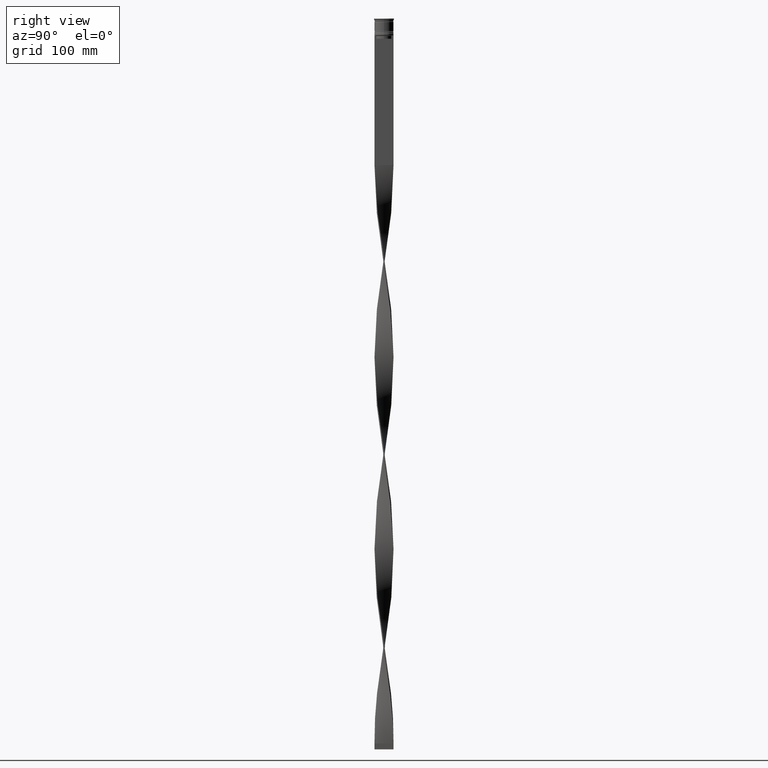
[diagram: clean part render]
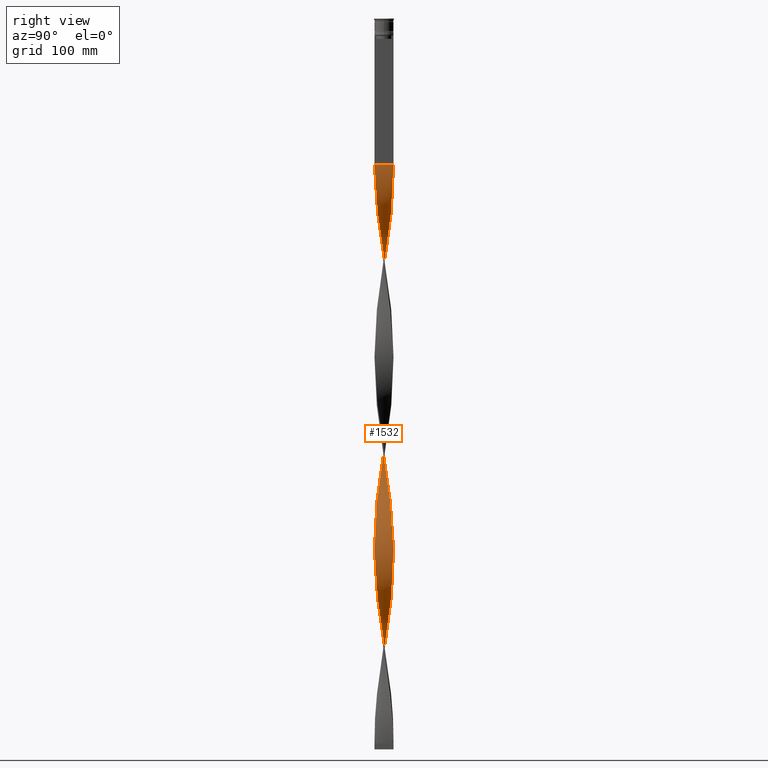
[diagram: same view with one face highlighted and labeled with its STEP entity id]
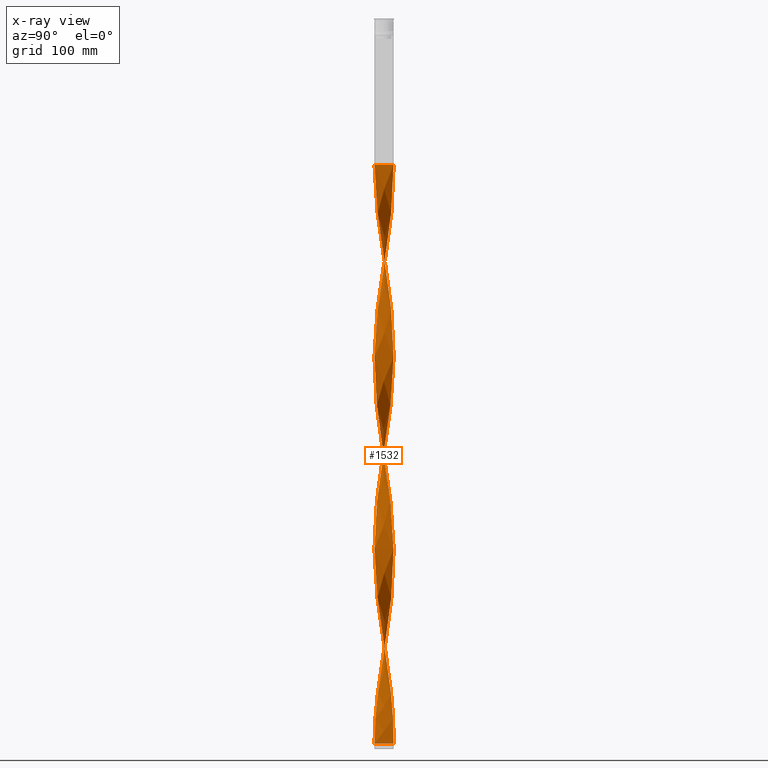
[diagram: x-ray of the same camera — body ghosted, the highlighted face saturated]
A machine part, right view. The second image highlights one B-rep face of the part: STEP entity #1532.
The next image is the same camera in x-ray: the body ghosted, the highlighted face saturated — about 0% of this face is hidden behind the body in this view.
In plain terms, the highlighted face is a freeform B-spline surface patch.
Its self-contained STEP definition (entity closure, byte-faithful):
#8 = CARTESIAN_POINT ( 'NONE',  ( 8.015817384569142945, 0.5009885865355726553, -204.0000000000000284 ) ) ;
#9 = CARTESIAN_POINT ( 'NONE',  ( 1.009899697685192388, -7.967711120969120486, -294.7199999999999704 ) ) ;
#13 = CARTESIAN_POINT ( 'NONE',  ( 3.866277073390941066, -7.039617851728269038, -145.6800000000000352 ) ) ;
#30 = CARTESIAN_POINT ( 'NONE',  ( 1.994129100314148806, -7.779959321094168878, -132.7199999999999989 ) ) ;
#31 = CARTESIAN_POINT ( 'NONE',  ( 6.190458785190111612, -5.116887524214522642, -333.6000000000000227 ) ) ;
#33 = CARTESIAN_POINT ( 'NONE',  ( -5.495492638774146066, -5.856951302834849216, -573.3600000000000136 ) ) ;
#51 = CARTESIAN_POINT ( 'NONE',  ( 6.186229683506280885, 5.121999629979041124, -404.8799999999999955 ) ) ;
#57 = CARTESIAN_POINT ( 'NONE',  ( 3.409884664421551026, -7.254149610763674261, -466.4399999999999977 ) ) ;
#62 = CARTESIAN_POINT ( 'NONE',  ( 4.723455957963784257, -6.495635590130969028, -320.6400000000001000 ) ) ;
#76 = CARTESIAN_POINT ( 'NONE',  ( 7.268492320028114406, 3.416626596555746076, -223.4399999999999977 ) ) ;
#77 = CARTESIAN_POINT ( 'NONE',  ( -5.840861161140211699, -5.489475466406946502, -570.1200000000000045 ) ) ;
#81 = CARTESIAN_POINT ( 'NONE',  ( 0.5000000000000001110, -8.000000000000003553, -447.0000000000000000 ) ) ;
#86 = CARTESIAN_POINT ( 'NONE',  ( -7.639394946319396418, 2.478701829738566342, -191.0400000000000205 ) ) ;
#96 = CARTESIAN_POINT ( 'NONE',  ( -1.498723219171671284, -7.874250993733667769, -602.5200000000000955 ) ) ;
#98 = CARTESIAN_POINT ( 'NONE',  ( -1.994129100314149472, 7.779959321094168878, -294.7199999999999136 ) ) ;
#103 = CARTESIAN_POINT ( 'NONE',  ( -5.111892533718801701, 6.174022572335633896, -161.8799999999999955 ) ) ;
#114 = CARTESIAN_POINT ( 'NONE',  ( 6.482817937080655568, 4.714135296601623004, -401.6399999999999864 ) ) ;
#118 = CARTESIAN_POINT ( 'NONE',  ( -6.779406190655039133, 4.306270963224204884, -333.6000000000000227 ) ) ;
#125 = CARTESIAN_POINT ( 'NONE',  ( -3.866277073390936181, -7.039617851728263709, -262.3199999999999932 ) ) ;
#138 = CARTESIAN_POINT ( 'NONE',  ( -8.015817384569135839, 0.5009885865355701018, -528.0000000000000000 ) ) ;
#140 = CARTESIAN_POINT ( 'NONE',  ( 1.498723219171673504, -7.874250993733674875, -453.4800000000000750 ) ) ;
#145 = CARTESIAN_POINT ( 'NONE',  ( -1.003317338029196426, -7.968542666373174654, -281.7600000000000477 ) ) ;
#159 = CARTESIAN_POINT ( 'NONE',  ( 6.190458785190118718, 5.116887524214525307, -560.3999999999999773 ) ) ;
#162 = CARTESIAN_POINT ( 'NONE',  ( -3.415876052791789075, 7.251330277401763169, -148.9199999999999875 ) ) ;
#164 = CARTESIAN_POINT ( 'NONE',  ( -1.505227516754521488, 7.873010232611473036, -459.9600000000000364 ) ) ;
#183 = CARTESIAN_POINT ( 'NONE',  ( 0.5000000000000001110, -8.000000000000003553, -447.0000000000000000 ) ) ;
#185 = CARTESIAN_POINT ( 'NONE',  ( -6.486710006526619665, 4.708778322582978682, -498.8400000000000318 ) ) ;
#202 = CARTESIAN_POINT ( 'NONE',  ( 1.009899697685191944, 7.967711120969127592, -599.2799999999999727 ) ) ;
#204 = CARTESIAN_POINT ( 'NONE',  ( 0.5000000000000001110, 7.999999999999996447, -123.0000000000000000 ) ) ;
#206 = CARTESIAN_POINT ( 'NONE',  ( -7.637344718665187493, 2.485011781637413097, -346.5600000000000023 ) ) ;
#209 = CARTESIAN_POINT ( 'NONE',  ( -7.762960627548698866, -1.996607696852002345, -544.2000000000000455 ) ) ;
#222 = CARTESIAN_POINT ( 'NONE',  ( 5.500329109473826250, 5.852409554540305869, -566.8799999999999955 ) ) ;
#226 = CARTESIAN_POINT ( 'NONE',  ( -5.495492638774153171, 5.856951302834851880, -320.6400000000001000 ) ) ;
#227 = CARTESIAN_POINT ( 'NONE',  ( 3.409884664421547473, 7.254149610763668932, -427.5600000000000023 ) ) ;
#246 = CARTESIAN_POINT ( 'NONE',  ( -3.409884664421553691, 7.254149610763673373, -304.4400000000000546 ) ) ;
#247 = CARTESIAN_POINT ( 'NONE',  ( -3.415876052791789075, 7.251330277401763169, -472.9200000000000159 ) ) ;
#272 = CARTESIAN_POINT ( 'NONE',  ( 5.845393947331968043, -5.484648539377409371, -330.3600000000000136 ) ) ;
#276 = CARTESIAN_POINT ( 'NONE',  ( -1.003317338029198424, 7.968542666373180872, -288.2400000000001228 ) ) ;
#277 = CARTESIAN_POINT ( 'NONE',  ( 7.764607348536650022, 1.990194142050143666, -213.7200000000000273 ) ) ;
#287 = CARTESIAN_POINT ( 'NONE',  ( 7.889819750753897409, 1.501686454361716327, -534.4800000000000182 ) ) ;
#297 = CARTESIAN_POINT ( 'NONE',  ( 4.723455957963784257, -6.495635590130969028, -320.6400000000001000 ) ) ;
#301 = CARTESIAN_POINT ( 'NONE',  ( -7.451506065510689503, -2.953820806287570377, -550.6800000000000637 ) ) ;
#311 = CARTESIAN_POINT ( 'NONE',  ( 8.015400789812524351, -0.5076101705763141902, -521.5200000000000955 ) ) ;
#319 = CARTESIAN_POINT ( 'NONE',  ( 7.265667412356198618, 3.422629830937731654, -391.9200000000001296 ) ) ;
#323 = CARTESIAN_POINT ( 'NONE',  ( 0.5000000000000001110, -8.000000000000003553, -123.0000000000000000 ) ) ;
#332 = CARTESIAN_POINT ( 'NONE',  ( 7.888576536432224451, -1.508203612066592036, -515.0400000000001910 ) ) ;
#343 = CARTESIAN_POINT ( 'NONE',  ( 8.015400789812524351, -0.5076101705763141902, -197.5200000000000387 ) ) ;
#344 = CARTESIAN_POINT ( 'NONE',  ( 6.779406190655031139, 4.306270963224203996, -398.4000000000000909 ) ) ;
#347 = CARTESIAN_POINT ( 'NONE',  ( -1.003317338029196426, -7.968542666373174654, -605.7599999999999909 ) ) ;
#359 = CARTESIAN_POINT ( 'NONE',  ( 7.639394946319403523, 2.478701829738569451, -540.9600000000001501 ) ) ;
#368 = CARTESIAN_POINT ( 'NONE',  ( 3.872091084340838041, -7.036421572160658222, -314.1599999999999682 ) ) ;
#370 = CARTESIAN_POINT ( 'NONE',  ( -2.953492255452156989, -7.468681369799075931, -592.8000000000001819 ) ) ;
#372 = ORIENTED_EDGE ( 'NONE', *, *, #3093, .F. ) ;
#391 = CARTESIAN_POINT ( 'NONE',  ( -7.025726773945617509, 3.858647858753589510, -505.3199999999999932 ) ) ;
#395 = CARTESIAN_POINT ( 'NONE',  ( -7.889819750753897409, -1.501686454361715217, -372.4800000000000750 ) ) ;
#399 = CARTESIAN_POINT ( 'NONE',  ( -4.718088392280368026, -6.499535354871833093, -255.8399999999999750 ) ) ;
#415 = CARTESIAN_POINT ( 'NONE',  ( 6.190458785190118718, 5.116887524214525307, -236.4000000000000341 ) ) ;
#416 = CARTESIAN_POINT ( 'NONE',  ( -6.486710006526619665, 4.708778322582978682, -498.8400000000000318 ) ) ;
#423 = CARTESIAN_POINT ( 'NONE',  ( -6.486710006526624106, -4.708778322582984011, -395.1600000000000250 ) ) ;
#426 = CARTESIAN_POINT ( 'NONE',  ( 5.111892533718801701, -6.174022572335633896, -323.8799999999999955 ) ) ;
#438 = CARTESIAN_POINT ( 'NONE',  ( -2.473810677883153453, -7.624320345446617964, -596.0399999999999636 ) ) ;
#441 = CARTESIAN_POINT ( 'NONE',  ( -2.480108178533298346, -7.622274163448353512, -427.5600000000000023 ) ) ;
#445 = CARTESIAN_POINT ( 'NONE',  ( -5.500329109473821809, 5.852409554540299652, -165.1200000000000330 ) ) ;
#454 = CARTESIAN_POINT ( 'NONE',  ( -7.265667412356199506, -3.422629830937729434, -553.9200000000000728 ) ) ;
#456 = CARTESIAN_POINT ( 'NONE',  ( 1.003317338029198647, -7.968542666373180872, -450.2400000000000659 ) ) ;
#461 = CARTESIAN_POINT ( 'NONE',  ( -4.723455957963782481, 6.495635590130969916, -158.6399999999999864 ) ) ;
#471 = CARTESIAN_POINT ( 'NONE',  ( -6.190458785190113389, 5.116887524214520866, -495.6000000000000227 ) ) ;
#475 = CARTESIAN_POINT ( 'NONE',  ( -7.952818567661519289, -1.001337520448645879, -369.2400000000000091 ) ) ;
#481 = CARTESIAN_POINT ( 'NONE',  ( -7.453943633173751415, 2.947664213147155543, -187.8000000000000114 ) ) ;
#493 = CARTESIAN_POINT ( 'NONE',  ( 6.779406190655039133, -4.306270963224203108, -495.6000000000000227 ) ) ;
#497 = CARTESIAN_POINT ( 'NONE',  ( -8.015609087190826543, -0.003310792020371129164, -531.2400000000000091 ) ) ;
#512 = CARTESIAN_POINT ( 'NONE',  ( -0.4999999999999992784, -2.666666666666663410, -609.0000000000000000 ) ) ;
#517 = CARTESIAN_POINT ( 'NONE',  ( 1.498723219171669063, 7.874250993733667769, -440.5200000000000387 ) ) ;
#538 = CARTESIAN_POINT ( 'NONE',  ( 2.000555335823852587, 7.778309344253832691, -268.8000000000000682 ) ) ;
#540 = CARTESIAN_POINT ( 'NONE',  ( -8.015400789812517246, -0.5076101705763140792, -534.4800000000000182 ) ) ;
#560 = CARTESIAN_POINT ( 'NONE',  ( 7.451506065510696608, -2.953820806287573042, -505.3199999999999932 ) ) ;
#565 = CARTESIAN_POINT ( 'NONE',  ( -6.190458785190114277, -5.116887524214530636, -398.4000000000000909 ) ) ;
#566 = CARTESIAN_POINT ( 'NONE',  ( 6.779406190655031139, 4.306270963224203996, -398.4000000000000909 ) ) ;
#582 = CARTESIAN_POINT ( 'NONE',  ( 6.486710006526624106, 4.708778322582984899, -557.1600000000000819 ) ) ;
#584 = CARTESIAN_POINT ( 'NONE',  ( -2.480108178533298346, -7.622274163448353512, -427.5600000000000023 ) ) ;
#585 = CARTESIAN_POINT ( 'NONE',  ( 1.003317338029197536, 7.968542666373174654, -443.7599999999999909 ) ) ;
#603 = CARTESIAN_POINT ( 'NONE',  ( -3.866277073390936625, -7.039617851728263709, -262.3199999999999932 ) ) ;
#608 = CARTESIAN_POINT ( 'NONE',  ( -7.764607348536649134, -1.990194142050145665, -375.7199999999999704 ) ) ;
#609 = CARTESIAN_POINT ( 'NONE',  ( 6.186229683506285326, -5.121999629979046453, -165.1200000000000330 ) ) ;
#621 = CARTESIAN_POINT ( 'NONE',  ( 6.782961227863132159, 4.300669120951441826, -553.9200000000000728 ) ) ;
#632 = CARTESIAN_POINT ( 'NONE',  ( 2.480108178533299235, -7.622274163448346407, -304.4400000000000546 ) ) ;
#635 = CARTESIAN_POINT ( 'NONE',  ( -4.723455957963785146, -6.495635590130977022, -411.3600000000000705 ) ) ;
#636 = CARTESIAN_POINT ( 'NONE',  ( 3.872091084340840705, 7.036421572160664439, -255.8399999999999750 ) ) ;
#655 = CARTESIAN_POINT ( 'NONE',  ( -7.265667412356199506, -3.422629830937729434, -229.9200000000000443 ) ) ;
#658 = CARTESIAN_POINT ( 'NONE',  ( 7.639394946319403523, 2.478701829738569007, -216.9600000000000080 ) ) ;
#666 = CARTESIAN_POINT ( 'NONE',  ( 5.106790515527261043, -6.178243328853345595, -479.4000000000000341 ) ) ;
#673 = CARTESIAN_POINT ( 'NONE',  ( 7.952818567661513960, -1.001337520448641438, -362.7600000000000477 ) ) ;
#676 = CARTESIAN_POINT ( 'NONE',  ( 7.762960627548705084, -1.996607696852003677, -187.8000000000000114 ) ) ;
#685 = CARTESIAN_POINT ( 'NONE',  ( 2.953492255452160986, -7.468681369799080372, -463.2000000000000455 ) ) ;
#696 = CARTESIAN_POINT ( 'NONE',  ( 4.297773521152310927, -6.766028581145812737, -317.4000000000000341 ) ) ;
#701 = CARTESIAN_POINT ( 'NONE',  ( 6.486710006526624106, 4.708778322582984899, -233.1599999999999966 ) ) ;
#703 = VERTEX_POINT ( 'NONE', #3563 ) ;
#723 = CARTESIAN_POINT ( 'NONE',  ( -4.718088392280368026, -6.499535354871833093, -579.8400000000001455 ) ) ;
#726 = CARTESIAN_POINT ( 'NONE',  ( -3.866277073390940178, 7.039617851728269038, -307.6800000000000637 ) ) ;
#747 = CARTESIAN_POINT ( 'NONE',  ( -0.003317338029197808638, 8.031457333626823569, -450.2400000000000659 ) ) ;
#751 = CARTESIAN_POINT ( 'NONE',  ( 4.292182732835656545, -6.769576603300054174, -472.9200000000000159 ) ) ;
#754 = CARTESIAN_POINT ( 'NONE',  ( 0.5000000000000001110, -8.000000000000003553, -123.0000000000000000 ) ) ;
#756 = CARTESIAN_POINT ( 'NONE',  ( -7.762960627548698866, -1.996607696852002345, -220.2000000000000171 ) ) ;
#772 = CARTESIAN_POINT ( 'NONE',  ( 6.782961227863132159, 4.300669120951441826, -229.9200000000000443 ) ) ;
#773 = CARTESIAN_POINT ( 'NONE',  ( -2.953492255452156989, -7.468681369799075931, -592.8000000000000682 ) ) ;
#779 = CARTESIAN_POINT ( 'NONE',  ( 1.009899697685191944, 7.967711120969127592, -275.2799999999999727 ) ) ;
#784 = CARTESIAN_POINT ( 'NONE',  ( 6.782961227863127718, -4.300669120951437385, -340.0800000000000978 ) ) ;
#796 = CARTESIAN_POINT ( 'NONE',  ( 1.994129100314147918, 7.779959321094163549, -437.2800000000000296 ) ) ;
#801 = CARTESIAN_POINT ( 'NONE',  ( -7.025726773945623727, -3.858647858753592175, -388.6800000000000068 ) ) ;
#805 = CARTESIAN_POINT ( 'NONE',  ( -8.015609087190826543, -0.003310792020371129164, -207.2400000000000091 ) ) ;
#813 = CARTESIAN_POINT ( 'NONE',  ( -3.415876052791789075, 7.251330277401763169, -472.9200000000000159 ) ) ;
#816 = CARTESIAN_POINT ( 'NONE',  ( 2.473810677883154785, -7.624320345446625069, -459.9600000000000364 ) ) ;
#821 = CARTESIAN_POINT ( 'NONE',  ( -3.409884664421546585, -7.254149610763668932, -265.5600000000000023 ) ) ;
#833 = CARTESIAN_POINT ( 'NONE',  ( 1.505227516754523709, 7.873010232611480141, -596.0399999999999636 ) ) ;
#839 = CARTESIAN_POINT ( 'NONE',  ( -7.268492320028109077, 3.416626596555742523, -508.5600000000001160 ) ) ;
#856 = CARTESIAN_POINT ( 'NONE',  ( 2.480108178533297458, 7.622274163448353512, -589.5600000000000591 ) ) ;
#861 = CARTESIAN_POINT ( 'NONE',  ( -7.889819750753890304, 1.501686454361714773, -521.5200000000002092 ) ) ;
#879 = CARTESIAN_POINT ( 'NONE',  ( 7.025726773945621950, 3.858647858753593063, -550.6800000000000637 ) ) ;
#881 = CARTESIAN_POINT ( 'NONE',  ( -6.486710006526619665, 4.708778322582978682, -174.8400000000000034 ) ) ;
#884 = CARTESIAN_POINT ( 'NONE',  ( 1.009899697685191944, 7.967711120969127592, -275.2799999999999727 ) ) ;
#885 = CARTESIAN_POINT ( 'NONE',  ( 4.292182732835652992, 6.769576603300047957, -421.0799999999999841 ) ) ;
#901 = CARTESIAN_POINT ( 'NONE',  ( -7.639394946319396418, 2.478701829738566786, -191.0400000000000205 ) ) ;
#904 = CARTESIAN_POINT ( 'NONE',  ( -2.473810677883156561, 7.624320345446625069, -297.9599999999999795 ) ) ;
#906 = CARTESIAN_POINT ( 'NONE',  ( 7.022536801505615323, 3.864450397080965161, -395.1600000000000250 ) ) ;
#924 = CARTESIAN_POINT ( 'NONE',  ( 2.959661021242743217, 7.466238982642876998, -586.3200000000000500 ) ) ;
#930 = CARTESIAN_POINT ( 'NONE',  ( 4.297773521152314480, 6.766028581145818066, -252.6000000000000512 ) ) ;
#931 = CARTESIAN_POINT ( 'NONE',  ( -0.5066085178571945180, 7.999584227297972916, -453.4800000000000750 ) ) ;
#947 = CARTESIAN_POINT ( 'NONE',  ( -2.000555335823849035, -7.778309344253833579, -430.8000000000000682 ) ) ;
#950 = CARTESIAN_POINT ( 'NONE',  ( 8.015609087190831872, -0.003310792020370695483, -200.7599999999999909 ) ) ;
#960 = CARTESIAN_POINT ( 'NONE',  ( 0.5066085178571940739, 7.999584227297980021, -602.5200000000000955 ) ) ;
#968 = CARTESIAN_POINT ( 'NONE',  ( 7.025726773945620174, -3.858647858753585957, -343.3199999999999932 ) ) ;
#970 = CARTESIAN_POINT ( 'NONE',  ( -0.5000000000000027756, 8.000000000000003553, -285.0000000000000568 ) ) ;
#971 = CARTESIAN_POINT ( 'NONE',  ( 4.297773521152314480, 6.766028581145818066, -252.6000000000000512 ) ) ;
#982 = CARTESIAN_POINT ( 'NONE',  ( -0.5000000000000027756, 8.000000000000003553, -609.0000000000000000 ) ) ;
#993 = CARTESIAN_POINT ( 'NONE',  ( 7.762960627548705084, -1.996607696852003677, -187.8000000000000114 ) ) ;
#994 = CARTESIAN_POINT ( 'NONE',  ( -7.951988663122367740, -1.007906891321453502, -213.7200000000000273 ) ) ;
#1000 = CARTESIAN_POINT ( 'NONE',  ( 6.779406190655039133, -4.306270963224203108, -171.6000000000000512 ) ) ;
#1018 = CARTESIAN_POINT ( 'NONE',  ( 7.637344718665187493, -2.485011781637413986, -184.5600000000000307 ) ) ;
#1019 = CARTESIAN_POINT ( 'NONE',  ( -7.888576536432219122, -1.508203612066591370, -216.9600000000000080 ) ) ;
#1023 = CARTESIAN_POINT ( 'NONE',  ( -3.409884664421546585, -7.254149610763668932, -589.5600000000000591 ) ) ;
#1027 = CARTESIAN_POINT ( 'NONE',  ( -0.5066085178571945180, 7.999584227297972916, -129.4800000000000182 ) ) ;
#1031 = CARTESIAN_POINT ( 'NONE',  ( 5.500329109473826250, 5.852409554540304981, -566.8799999999999955 ) ) ;
#1040 = CARTESIAN_POINT ( 'NONE',  ( 7.888576536432219122, 1.508203612066592036, -378.9600000000000932 ) ) ;
#1045 = CARTESIAN_POINT ( 'NONE',  ( 2.473810677883154785, -7.624320345446625069, -135.9600000000000080 ) ) ;
#1067 = CARTESIAN_POINT ( 'NONE',  ( 2.473810677883150788, 7.624320345446618852, -434.0400000000000205 ) ) ;
#1072 = CARTESIAN_POINT ( 'NONE',  ( -1.009899697685192832, -7.967711120969127592, -437.2800000000000864 ) ) ;
#1090 = CARTESIAN_POINT ( 'NONE',  ( -7.453943633173751415, 2.947664213147155543, -511.8000000000000114 ) ) ;
#1093 = CARTESIAN_POINT ( 'NONE',  ( -2.953492255452163207, 7.468681369799081260, -301.2000000000000455 ) ) ;
#1097 = CARTESIAN_POINT ( 'NONE',  ( -1.505227516754521488, 7.873010232611473036, -135.9600000000000080 ) ) ;
#1109 = CARTESIAN_POINT ( 'NONE',  ( 5.111892533718805254, 6.174022572335640113, -246.1200000000000045 ) ) ;
#1110 = CARTESIAN_POINT ( 'NONE',  ( -8.015609087190826543, -0.003310792020371129164, -531.2400000000000091 ) ) ;
#1113 = CARTESIAN_POINT ( 'NONE',  ( 0.5066085178571940739, 7.999584227297980021, -278.5199999999999818 ) ) ;
#1116 = CARTESIAN_POINT ( 'NONE',  ( -7.268492320028109077, 3.416626596555742523, -184.5600000000000307 ) ) ;
#1131 = CARTESIAN_POINT ( 'NONE',  ( -7.952818567661513960, 1.001337520448642326, -524.7599999999999909 ) ) ;
#1136 = CARTESIAN_POINT ( 'NONE',  ( 1.505227516754523709, 7.873010232611480141, -272.0400000000000205 ) ) ;
#1142 = CARTESIAN_POINT ( 'NONE',  ( -4.292182732835652104, -6.769576603300047957, -259.0799999999999841 ) ) ;
#1157 = CARTESIAN_POINT ( 'NONE',  ( 5.495492638774146954, 5.856951302834849216, -411.3600000000000705 ) ) ;
#1161 = CARTESIAN_POINT ( 'NONE',  ( -7.764607348536649134, -1.990194142050145665, -375.7199999999999704 ) ) ;
#1165 = CARTESIAN_POINT ( 'NONE',  ( 2.000555335823854808, -7.778309344253825586, -301.2000000000000455 ) ) ;
#1176 = CARTESIAN_POINT ( 'NONE',  ( 0.003317338029196290321, 8.031457333626828898, -605.7599999999999909 ) ) ;
#1181 = CARTESIAN_POINT ( 'NONE',  ( 4.297773521152310927, -6.766028581145812737, -317.4000000000000341 ) ) ;
#1195 = CARTESIAN_POINT ( 'NONE',  ( 8.015609087190831872, -0.003310792020370695483, -524.7599999999999909 ) ) ;
#1204 = CARTESIAN_POINT ( 'NONE',  ( 8.015609087190826543, 0.003310792020373622829, -369.2400000000000091 ) ) ;
#1220 = CARTESIAN_POINT ( 'NONE',  ( 6.482817937080661785, -4.714135296601624781, -492.3600000000000136 ) ) ;
#1224 = CARTESIAN_POINT ( 'NONE',  ( -1.498723219171673948, 7.874250993733674875, -291.4800000000000182 ) ) ;
#1225 = CARTESIAN_POINT ( 'NONE',  ( 7.451506065510690391, 2.953820806287569489, -388.6800000000000068 ) ) ;
#1239 = CARTESIAN_POINT ( 'NONE',  ( 3.872091084340840705, 7.036421572160664439, -579.8400000000001455 ) ) ;
#1241 = CARTESIAN_POINT ( 'NONE',  ( -7.268492320028109077, 3.416626596555742523, -184.5600000000000307 ) ) ;
#1244 = CARTESIAN_POINT ( 'NONE',  ( -7.639394946319403523, -2.478701829738570339, -378.9600000000000932 ) ) ;
#1245 = CARTESIAN_POINT ( 'NONE',  ( -5.500329109473821809, 5.852409554540299652, -489.1200000000001182 ) ) ;
#1262 = CARTESIAN_POINT ( 'NONE',  ( 7.022536801505622428, -3.864450397080966937, -498.8400000000000318 ) ) ;
#1269 = CARTESIAN_POINT ( 'NONE',  ( -6.486710006526624106, -4.708778322582984011, -395.1600000000000250 ) ) ;
#1271 = CARTESIAN_POINT ( 'NONE',  ( -8.015817384569137616, 0.5009885865355701018, -528.0000000000000000 ) ) ;
#1290 = CARTESIAN_POINT ( 'NONE',  ( -0.5066085178571945180, 7.999584227297972916, -129.4800000000000182 ) ) ;
#1294 = CARTESIAN_POINT ( 'NONE',  ( 1.003317338029198647, -7.968542666373180872, -450.2400000000000659 ) ) ;
#1295 = CARTESIAN_POINT ( 'NONE',  ( -6.190458785190113389, 5.116887524214521754, -495.6000000000000227 ) ) ;
#1305 = CARTESIAN_POINT ( 'NONE',  ( 4.718088392280371579, -6.499535354871838422, -476.1600000000000250 ) ) ;
#1312 = CARTESIAN_POINT ( 'NONE',  ( -1.994129100314147029, -7.779959321094163549, -275.2799999999999727 ) ) ;
#1314 = CARTESIAN_POINT ( 'NONE',  ( 3.415876052791791739, 7.251330277401769386, -259.0799999999999841 ) ) ;
#1315 = CARTESIAN_POINT ( 'NONE',  ( 5.111892533718805254, 6.174022572335640113, -246.1200000000000045 ) ) ;
#1324 = ORIENTED_EDGE ( 'NONE', *, *, #4330, .T. ) ;
#1325 = CARTESIAN_POINT ( 'NONE',  ( 7.762960627548705084, -1.996607696852003677, -511.8000000000000114 ) ) ;
#1332 = CARTESIAN_POINT ( 'NONE',  ( -2.953492255452156989, -7.468681369799075931, -268.8000000000000682 ) ) ;
#1338 = CARTESIAN_POINT ( 'NONE',  ( 2.959661021242743217, 7.466238982642876998, -262.3199999999999932 ) ) ;
#1359 = CARTESIAN_POINT ( 'NONE',  ( 5.495492638774151395, -5.856951302834852768, -158.6400000000000148 ) ) ;
#1360 = CARTESIAN_POINT ( 'NONE',  ( -6.186229683506279997, -5.121999629979042012, -242.8800000000000523 ) ) ;
#1364 = CARTESIAN_POINT ( 'NONE',  ( 7.453943633173757632, 2.947664213147158208, -220.2000000000000171 ) ) ;
#1380 = CARTESIAN_POINT ( 'NONE',  ( 5.840861161140218805, -5.489475466406950943, -161.8799999999999955 ) ) ;
#1381 = CARTESIAN_POINT ( 'NONE',  ( -7.889819750753890304, 1.501686454361714551, -197.5200000000000387 ) ) ;
#1384 = CARTESIAN_POINT ( 'NONE',  ( 5.840861161140218805, -5.489475466406950943, -161.8799999999999955 ) ) ;
#1402 = CARTESIAN_POINT ( 'NONE',  ( 7.265667412356207500, -3.422629830937730322, -178.0800000000000125 ) ) ;
#1403 = CARTESIAN_POINT ( 'NONE',  ( 7.889819750753890304, -1.501686454361710332, -359.5200000000000387 ) ) ;
#1406 = CARTESIAN_POINT ( 'NONE',  ( 8.015400789812524351, -0.5076101705763140792, -197.5200000000000387 ) ) ;
#1427 = CARTESIAN_POINT ( 'NONE',  ( 1.003317338029197314, 7.968542666373173766, -443.7600000000000477 ) ) ;
#1431 = CARTESIAN_POINT ( 'NONE',  ( 3.866277073390941066, -7.039617851728269038, -469.6800000000001205 ) ) ;
#1434 = LINE ( 'NONE', #754, #3826 ) ;
#1438 = CARTESIAN_POINT ( 'NONE',  ( -3.872091084340837153, 7.036421572160659110, -152.1599999999999966 ) ) ;
#1450 = CARTESIAN_POINT ( 'NONE',  ( 7.025726773945621950, 3.858647858753593063, -226.6800000000000068 ) ) ;
#1451 = CARTESIAN_POINT ( 'NONE',  ( -3.866277073390936625, -7.039617851728263709, -586.3200000000000500 ) ) ;
#1455 = CARTESIAN_POINT ( 'NONE',  ( -4.297773521152309151, -6.766028581145820731, -414.6000000000000227 ) ) ;
#1460 = CARTESIAN_POINT ( 'NONE',  ( 6.190458785190111612, -5.116887524214523530, -333.6000000000000227 ) ) ;
#1470 = CARTESIAN_POINT ( 'NONE',  ( 3.866277073390933960, 7.039617851728265485, -424.3200000000000500 ) ) ;
#1473 = CARTESIAN_POINT ( 'NONE',  ( -0.5000000000000027756, 8.000000000000003553, -285.0000000000000568 ) ) ;
#1476 = CARTESIAN_POINT ( 'NONE',  ( -7.265667412356199506, -3.422629830937729434, -229.9200000000000443 ) ) ;
#1489 = CARTESIAN_POINT ( 'NONE',  ( 4.292182732835652992, 6.769576603300047957, -421.0799999999999841 ) ) ;
#1495 = CARTESIAN_POINT ( 'NONE',  ( -4.718088392280372467, 6.499535354871837534, -314.1599999999999682 ) ) ;
#1498 = CARTESIAN_POINT ( 'NONE',  ( -5.106790515527258378, -6.178243328853339378, -252.6000000000000512 ) ) ;
#1512 = CARTESIAN_POINT ( 'NONE',  ( -6.186229683506279997, -5.121999629979042012, -566.8799999999999955 ) ) ;
#1514 = CARTESIAN_POINT ( 'NONE',  ( -0.4999999999999975020, -7.999999999999996447, -609.0000000000000000 ) ) ;
#1519 = CARTESIAN_POINT ( 'NONE',  ( 2.480108178533299235, -7.622274163448346407, -304.4400000000000546 ) ) ;
#1532 = ADVANCED_FACE ( 'NONE', ( #2043 ), #3205, .T. ) ;
#1534 = CARTESIAN_POINT ( 'NONE',  ( 7.888576536432224451, -1.508203612066592036, -515.0400000000001910 ) ) ;
#1541 = CARTESIAN_POINT ( 'NONE',  ( -3.872091084340837153, 7.036421572160659110, -476.1600000000000250 ) ) ;
#1565 = CARTESIAN_POINT ( 'NONE',  ( 0.5066085178571940739, 7.999584227297980021, -278.5199999999999818 ) ) ;
#1566 = CARTESIAN_POINT ( 'NONE',  ( 6.186229683506279997, 5.121999629979041124, -404.8799999999999955 ) ) ;
#1569 = EDGE_CURVE ( 'NONE', #4351, #3916, #2472, .T. ) ;
#1586 = CARTESIAN_POINT ( 'NONE',  ( -3.872091084340837153, 7.036421572160659110, -152.1599999999999966 ) ) ;
#1589 = CARTESIAN_POINT ( 'NONE',  ( -8.015609087190831872, 0.003310792020369936542, -362.7600000000000477 ) ) ;
#1590 = CARTESIAN_POINT ( 'NONE',  ( -2.480108178533296570, 7.622274163448347295, -466.4399999999999977 ) ) ;
#1606 = CARTESIAN_POINT ( 'NONE',  ( 8.015400789812524351, -0.5076101705763140792, -521.5200000000002092 ) ) ;
#1611 = CARTESIAN_POINT ( 'NONE',  ( -3.872091084340838041, -7.036421572160664439, -417.8400000000000887 ) ) ;
#1612 = CARTESIAN_POINT ( 'NONE',  ( -4.723455957963782481, 6.495635590130969916, -482.6400000000001000 ) ) ;
#1635 = CARTESIAN_POINT ( 'NONE',  ( -0.003317338029197266971, -8.031457333626830675, -443.7600000000000477 ) ) ;
#1637 = CARTESIAN_POINT ( 'NONE',  ( -4.297773521152309151, 6.766028581145814513, -479.4000000000000341 ) ) ;
#1649 = CARTESIAN_POINT ( 'NONE',  ( 5.840861161140218805, -5.489475466406950943, -485.8800000000000523 ) ) ;
#1660 = CARTESIAN_POINT ( 'NONE',  ( 7.637344718665179499, 2.485011781637414430, -385.4399999999999977 ) ) ;
#1662 = CARTESIAN_POINT ( 'NONE',  ( -8.015817384569142945, -0.5009885865355698797, -366.0000000000000000 ) ) ;
#1663 = CARTESIAN_POINT ( 'NONE',  ( 6.190458785190118718, 5.116887524214525307, -236.4000000000000341 ) ) ;
#1672 = CARTESIAN_POINT ( 'NONE',  ( 2.473810677883154785, -7.624320345446625069, -459.9600000000000364 ) ) ;
#1679 = CARTESIAN_POINT ( 'NONE',  ( 2.953492255452160986, -7.468681369799080372, -139.1999999999999886 ) ) ;
#1680 = CARTESIAN_POINT ( 'NONE',  ( -7.637344718665181276, -2.485011781637412209, -223.4399999999999977 ) ) ;
#1685 = CARTESIAN_POINT ( 'NONE',  ( -3.866277073390936181, -7.039617851728263709, -586.3200000000000500 ) ) ;
#1694 = CARTESIAN_POINT ( 'NONE',  ( 6.486710006526624106, 4.708778322582984899, -557.1600000000000819 ) ) ;
#1704 = CARTESIAN_POINT ( 'NONE',  ( 7.022536801505615323, 3.864450397080965161, -395.1600000000000250 ) ) ;
#1708 = CARTESIAN_POINT ( 'NONE',  ( -6.186229683506279109, -5.121999629979042012, -566.8799999999999955 ) ) ;
#1715 = CARTESIAN_POINT ( 'NONE',  ( -0.003317338029197808204, 8.031457333626821793, -126.2400000000000233 ) ) ;
#1720 = CARTESIAN_POINT ( 'NONE',  ( 8.015609087190831872, -0.003310792020370695483, -524.7599999999999909 ) ) ;
#1730 = CARTESIAN_POINT ( 'NONE',  ( 3.409884664421551026, -7.254149610763674261, -142.4399999999999977 ) ) ;
#1731 = CARTESIAN_POINT ( 'NONE',  ( -2.473810677883153453, -7.624320345446617964, -272.0400000000000205 ) ) ;
#1734 = CARTESIAN_POINT ( 'NONE',  ( 1.994129100314148584, -7.779959321094168878, -132.7199999999999989 ) ) ;
#1743 = CARTESIAN_POINT ( 'NONE',  ( 1.505227516754523709, 7.873010232611480141, -596.0399999999999636 ) ) ;
#1753 = CARTESIAN_POINT ( 'NONE',  ( -5.106790515527258378, -6.178243328853339378, -252.6000000000000512 ) ) ;
#1756 = CARTESIAN_POINT ( 'NONE',  ( 6.482817937080661785, -4.714135296601624781, -168.3600000000000136 ) ) ;
#1773 = CARTESIAN_POINT ( 'NONE',  ( -7.951988663122367740, -1.007906891321453502, -537.7200000000000273 ) ) ;
#1776 = CARTESIAN_POINT ( 'NONE',  ( -4.292182732835657433, 6.769576603300054174, -310.9199999999999591 ) ) ;
#1781 = CARTESIAN_POINT ( 'NONE',  ( -2.473810677883153453, -7.624320345446617964, -272.0400000000000205 ) ) ;
#1794 = CARTESIAN_POINT ( 'NONE',  ( 7.764607348536650022, 1.990194142050143666, -213.7200000000000273 ) ) ;
#1795 = CARTESIAN_POINT ( 'NONE',  ( -5.106790515527258378, -6.178243328853339378, -576.6000000000000227 ) ) ;
#1802 = CARTESIAN_POINT ( 'NONE',  ( -4.723455957963785146, -6.495635590130977022, -411.3600000000000705 ) ) ;
#1806 = CARTESIAN_POINT ( 'NONE',  ( 5.500329109473821809, -5.852409554540299652, -327.1200000000001182 ) ) ;
#1818 = CARTESIAN_POINT ( 'NONE',  ( -1.994129100314147029, -7.779959321094163549, -599.2800000000000864 ) ) ;
#1821 = CARTESIAN_POINT ( 'NONE',  ( -7.762960627548705084, 1.996607696852004565, -349.8000000000000114 ) ) ;
#1825 = CARTESIAN_POINT ( 'NONE',  ( -7.952818567661513960, 1.001337520448642326, -200.7599999999999909 ) ) ;
#1835 = CARTESIAN_POINT ( 'NONE',  ( -6.779406190655034692, -4.306270963224198667, -560.3999999999999773 ) ) ;
#1837 = CARTESIAN_POINT ( 'NONE',  ( -6.190458785190114277, -5.116887524214530636, -398.4000000000000909 ) ) ;
#1842 = CARTESIAN_POINT ( 'NONE',  ( -5.845393947331967155, 5.484648539377410259, -168.3600000000000136 ) ) ;
#1855 = CARTESIAN_POINT ( 'NONE',  ( 0.5000000000000001110, 7.999999999999996447, -447.0000000000000000 ) ) ;
#1860 = CARTESIAN_POINT ( 'NONE',  ( -6.482817937080662674, 4.714135296601623892, -330.3600000000000136 ) ) ;
#1866 = CARTESIAN_POINT ( 'NONE',  ( -0.4999999999999975020, -7.999999999999996447, -285.0000000000000568 ) ) ;
#1881 = CARTESIAN_POINT ( 'NONE',  ( 7.265667412356207500, -3.422629830937730322, -502.0800000000000409 ) ) ;
#1885 = CARTESIAN_POINT ( 'NONE',  ( 2.953492255452154325, 7.468681369799076819, -430.8000000000000682 ) ) ;
#1889 = ORIENTED_EDGE ( 'NONE', *, *, #1569, .F. ) ;
#1900 = CARTESIAN_POINT ( 'NONE',  ( -0.5000000000000009992, 2.666666666666670515, -609.0000000000000000 ) ) ;
#1903 = CARTESIAN_POINT ( 'NONE',  ( -2.000555335823852587, 7.778309344253825586, -139.1999999999999886 ) ) ;
#1906 = CARTESIAN_POINT ( 'NONE',  ( -1.009899697685191056, 7.967711120969122263, -456.7200000000000841 ) ) ;
#1908 = ORIENTED_EDGE ( 'NONE', *, *, #2765, .F. ) ;
#1922 = CARTESIAN_POINT ( 'NONE',  ( 5.495492638774150507, -5.856951302834852768, -482.6400000000001000 ) ) ;
#1924 = CARTESIAN_POINT ( 'NONE',  ( -5.500329109473821809, 5.852409554540299652, -165.1200000000000045 ) ) ;
#1931 = CARTESIAN_POINT ( 'NONE',  ( -5.840861161140218805, 5.489475466406950943, -323.8799999999999955 ) ) ;
#1932 = CARTESIAN_POINT ( 'NONE',  ( -7.951988663122367740, -1.007906891321453502, -537.7200000000000273 ) ) ;
#1950 = CARTESIAN_POINT ( 'NONE',  ( -5.111892533718802589, -6.174022572335641890, -408.1200000000000614 ) ) ;
#1951 = CARTESIAN_POINT ( 'NONE',  ( 3.866277073390933960, 7.039617851728265485, -424.3200000000000500 ) ) ;
#1966 = CARTESIAN_POINT ( 'NONE',  ( 7.453943633173757632, 2.947664213147158208, -544.2000000000000455 ) ) ;
#1968 = CARTESIAN_POINT ( 'NONE',  ( -0.003317338029197808638, 8.031457333626823569, -126.2400000000000233 ) ) ;
#1970 = CARTESIAN_POINT ( 'NONE',  ( -1.009899697685192832, -7.967711120969127592, -437.2800000000000296 ) ) ;
#1971 = CARTESIAN_POINT ( 'NONE',  ( 7.764607348536644693, -1.990194142050141002, -356.2800000000000296 ) ) ;
#1986 = CARTESIAN_POINT ( 'NONE',  ( -8.015817384569135839, 0.5009885865355701018, -204.0000000000000284 ) ) ;
#1989 = CARTESIAN_POINT ( 'NONE',  ( -7.025726773945623727, -3.858647858753592175, -388.6800000000000068 ) ) ;
#1991 = CARTESIAN_POINT ( 'NONE',  ( 7.025726773945621950, 3.858647858753593063, -226.6800000000000068 ) ) ;
#2002 = CARTESIAN_POINT ( 'NONE',  ( 5.111892533718805254, 6.174022572335640113, -570.1200000000000045 ) ) ;
#2015 = CARTESIAN_POINT ( 'NONE',  ( -6.779406190655034692, -4.306270963224198667, -236.4000000000000341 ) ) ;
#2018 = CARTESIAN_POINT ( 'NONE',  ( -0.5066085178571916314, -7.999584227297980021, -440.5200000000000387 ) ) ;
#2019 = CARTESIAN_POINT ( 'NONE',  ( 5.500329109473826250, 5.852409554540305869, -242.8800000000000239 ) ) ;
#2028 = CARTESIAN_POINT ( 'NONE',  ( 7.025726773945621950, 3.858647858753593063, -550.6800000000000637 ) ) ;
#2036 = CARTESIAN_POINT ( 'NONE',  ( -6.482817937080656456, -4.714135296601621228, -239.6400000000000148 ) ) ;
#2039 = CARTESIAN_POINT ( 'NONE',  ( 3.415876052791791739, 7.251330277401769386, -259.0799999999999841 ) ) ;
#2043 = FACE_OUTER_BOUND ( 'NONE', #2121, .T. ) ;
#2048 = CARTESIAN_POINT ( 'NONE',  ( 7.453943633173757632, 2.947664213147158208, -544.2000000000000455 ) ) ;
#2055 = CARTESIAN_POINT ( 'NONE',  ( 4.292182732835656545, -6.769576603300054174, -148.9199999999999875 ) ) ;
#2056 = CARTESIAN_POINT ( 'NONE',  ( -7.762960627548698866, -1.996607696852002345, -220.2000000000000171 ) ) ;
#2059 = CARTESIAN_POINT ( 'NONE',  ( 8.015817384569144721, 0.5009885865355727663, -204.0000000000000284 ) ) ;
#2072 = CARTESIAN_POINT ( 'NONE',  ( 7.265667412356207500, -3.422629830937730322, -502.0800000000000978 ) ) ;
#2086 = CARTESIAN_POINT ( 'NONE',  ( -5.840861161140211699, -5.489475466406946502, -246.1200000000000045 ) ) ;
#2091 = CARTESIAN_POINT ( 'NONE',  ( 4.718088392280371579, -6.499535354871838422, -152.1599999999999966 ) ) ;
#2110 = CARTESIAN_POINT ( 'NONE',  ( 7.022536801505622428, -3.864450397080966937, -174.8400000000000034 ) ) ;
#2111 = CARTESIAN_POINT ( 'NONE',  ( -4.297773521152309151, 6.766028581145814513, -479.4000000000000341 ) ) ;
#2114 = CARTESIAN_POINT ( 'NONE',  ( -5.495492638774152283, 5.856951302834851880, -320.6400000000001000 ) ) ;
#2118 = CARTESIAN_POINT ( 'NONE',  ( -7.022536801505615323, -3.864450397080966049, -233.1599999999999966 ) ) ;
#2121 = EDGE_LOOP ( 'NONE', ( #1908, #1324, #1889, #372 ) ) ;
#2131 = CARTESIAN_POINT ( 'NONE',  ( 0.5000000000000001110, -8.000000000000003553, -123.0000000000000000 ) ) ;
#2132 = CARTESIAN_POINT ( 'NONE',  ( -6.482817937080656456, -4.714135296601621228, -563.6399999999999864 ) ) ;
#2136 = CARTESIAN_POINT ( 'NONE',  ( -8.015400789812524351, 0.5076101705763097494, -359.5200000000000955 ) ) ;
#2141 = CARTESIAN_POINT ( 'NONE',  ( -7.951988663122367740, -1.007906891321453502, -213.7200000000000273 ) ) ;
#2157 = CARTESIAN_POINT ( 'NONE',  ( 6.486710006526624106, 4.708778322582984899, -233.1599999999999966 ) ) ;
#2158 = CARTESIAN_POINT ( 'NONE',  ( -7.888576536432219122, -1.508203612066591370, -540.9600000000001501 ) ) ;
#2164 = CARTESIAN_POINT ( 'NONE',  ( -2.000555335823849035, -7.778309344253833579, -430.8000000000000682 ) ) ;
#2169 = CARTESIAN_POINT ( 'NONE',  ( -2.959661021242742329, 7.466238982642869004, -145.6800000000000352 ) ) ;
#2179 = CARTESIAN_POINT ( 'NONE',  ( -7.764607348536644693, 1.990194142050140114, -518.2800000000000864 ) ) ;
#2182 = CARTESIAN_POINT ( 'NONE',  ( -7.637344718665186605, 2.485011781637413097, -346.5599999999999454 ) ) ;
#2187 = CARTESIAN_POINT ( 'NONE',  ( -2.000555335823852143, 7.778309344253825586, -139.1999999999999602 ) ) ;
#2198 = CARTESIAN_POINT ( 'NONE',  ( -6.782961227863128606, 4.300669120951436497, -502.0800000000000978 ) ) ;
#2201 = CARTESIAN_POINT ( 'NONE',  ( -0.5066085178571916314, -7.999584227297980021, -440.5200000000000387 ) ) ;
#2209 = CARTESIAN_POINT ( 'NONE',  ( -2.480108178533296570, 7.622274163448347295, -142.4399999999999977 ) ) ;
#2223 = CARTESIAN_POINT ( 'NONE',  ( -0.5000000000000027756, 8.000000000000003553, -609.0000000000000000 ) ) ;
#2230 = CARTESIAN_POINT ( 'NONE',  ( -7.025726773945617509, 3.858647858753589510, -505.3199999999999932 ) ) ;
#2250 = CARTESIAN_POINT ( 'NONE',  ( 7.639394946319397306, -2.478701829738564566, -353.0400000000000205 ) ) ;
#2268 = CARTESIAN_POINT ( 'NONE',  ( 0.003317338029196290755, 8.031457333626830675, -281.7599999999999909 ) ) ;
#2269 = CARTESIAN_POINT ( 'NONE',  ( -7.764607348536644693, 1.990194142050140114, -518.2800000000000864 ) ) ;
#2294 = CARTESIAN_POINT ( 'NONE',  ( -4.292182732835657433, 6.769576603300054174, -310.9199999999999591 ) ) ;
#2295 = CARTESIAN_POINT ( 'NONE',  ( 5.106790515527253049, 6.178243328853343819, -414.6000000000000227 ) ) ;
#2312 = CARTESIAN_POINT ( 'NONE',  ( 5.840861161140218805, -5.489475466406950943, -485.8800000000000523 ) ) ;
#2318 = CARTESIAN_POINT ( 'NONE',  ( -4.718088392280372467, 6.499535354871837534, -314.1599999999999682 ) ) ;
#2319 = CARTESIAN_POINT ( 'NONE',  ( 7.889819750753890304, -1.501686454361710332, -359.5200000000000955 ) ) ;
#2334 = CARTESIAN_POINT ( 'NONE',  ( 8.015817384569135839, -0.5009885865355728773, -366.0000000000000000 ) ) ;
#2337 = CARTESIAN_POINT ( 'NONE',  ( -7.453943633173759409, -2.947664213147155543, -382.2000000000000455 ) ) ;
#2338 = CARTESIAN_POINT ( 'NONE',  ( -5.106790515527258378, -6.178243328853339378, -576.6000000000000227 ) ) ;
#2350 = CARTESIAN_POINT ( 'NONE',  ( 5.495492638774151395, -5.856951302834852768, -482.6400000000000432 ) ) ;
#2357 = CARTESIAN_POINT ( 'NONE',  ( -4.292182732835652104, -6.769576603300047957, -259.0799999999999841 ) ) ;
#2360 = CARTESIAN_POINT ( 'NONE',  ( -5.845393947331969819, -5.484648539377416476, -401.6399999999999864 ) ) ;
#2362 = CARTESIAN_POINT ( 'NONE',  ( 3.409884664421551026, -7.254149610763674261, -142.4399999999999977 ) ) ;
#2383 = CARTESIAN_POINT ( 'NONE',  ( 7.888576536432224451, -1.508203612066592036, -191.0400000000000205 ) ) ;
#2384 = CARTESIAN_POINT ( 'NONE',  ( 7.268492320028109077, -3.416626596555742523, -346.5600000000000023 ) ) ;
#2389 = CARTESIAN_POINT ( 'NONE',  ( -5.840861161140211699, -5.489475466406946502, -570.1200000000000045 ) ) ;
#2406 = CARTESIAN_POINT ( 'NONE',  ( 7.951988663122367740, 1.007906891321455944, -375.7199999999999704 ) ) ;
#2409 = CARTESIAN_POINT ( 'NONE',  ( -2.473810677883153453, -7.624320345446617964, -596.0399999999999636 ) ) ;
#2413 = CARTESIAN_POINT ( 'NONE',  ( -1.009899697685191056, 7.967711120969122263, -132.7199999999999989 ) ) ;
#2417 = CARTESIAN_POINT ( 'NONE',  ( 7.451506065510696608, -2.953820806287573042, -505.3199999999999932 ) ) ;
#2424 = CARTESIAN_POINT ( 'NONE',  ( 7.952818567661520177, 1.001337520448643437, -207.2400000000000091 ) ) ;
#2425 = CARTESIAN_POINT ( 'NONE',  ( -1.498723219171671284, -7.874250993733667769, -278.5199999999999818 ) ) ;
#2429 = CARTESIAN_POINT ( 'NONE',  ( 5.106790515527261043, -6.178243328853345595, -155.4000000000000057 ) ) ;
#2454 = CARTESIAN_POINT ( 'NONE',  ( 1.498723219171673504, -7.874250993733674875, -129.4800000000000182 ) ) ;
#2455 = CARTESIAN_POINT ( 'NONE',  ( -5.111892533718801701, 6.174022572335633896, -485.8800000000000523 ) ) ;
#2458 = CARTESIAN_POINT ( 'NONE',  ( -5.500329109473827138, -5.852409554540304981, -404.8799999999999955 ) ) ;
#2472 = B_SPLINE_CURVE_WITH_KNOTS ( 'NONE', 3,
 ( #1514, #512, #1900, #3284 ),
 .UNSPECIFIED., .F., .F.,
 ( 4, 4 ),
 ( 0.000000000000000000, 1.000000000000000000 ),
 .UNSPECIFIED. ) ;
#2476 = CARTESIAN_POINT ( 'NONE',  ( -7.889819750753890304, 1.501686454361714551, -521.5200000000000955 ) ) ;
#2479 = CARTESIAN_POINT ( 'NONE',  ( -5.845393947331969819, -5.484648539377416476, -401.6399999999999864 ) ) ;
#2483 = CARTESIAN_POINT ( 'NONE',  ( -1.994129100314146807, -7.779959321094163549, -275.2799999999999727 ) ) ;
#2496 = CARTESIAN_POINT ( 'NONE',  ( 7.453943633173757632, 2.947664213147158208, -220.2000000000000171 ) ) ;
#2497 = CARTESIAN_POINT ( 'NONE',  ( -3.409884664421546585, -7.254149610763668932, -589.5600000000000591 ) ) ;
#2500 = CARTESIAN_POINT ( 'NONE',  ( -7.268492320028113518, -3.416626596555748296, -385.4399999999999977 ) ) ;
#2505 = CARTESIAN_POINT ( 'NONE',  ( 1.009899697685192388, -7.967711120969120486, -294.7199999999999136 ) ) ;
#2519 = CARTESIAN_POINT ( 'NONE',  ( -5.500329109473821809, 5.852409554540299652, -489.1200000000001182 ) ) ;
#2522 = CARTESIAN_POINT ( 'NONE',  ( -6.782961227863132159, -4.300669120951443603, -391.9200000000000728 ) ) ;
#2528 = CARTESIAN_POINT ( 'NONE',  ( 0.003317338029197591364, -8.031457333626821793, -288.2400000000001796 ) ) ;
#2539 = CARTESIAN_POINT ( 'NONE',  ( 2.953492255452154325, 7.468681369799075931, -430.8000000000000682 ) ) ;
#2544 = CARTESIAN_POINT ( 'NONE',  ( -3.409884664421553691, 7.254149610763673373, -304.4400000000000546 ) ) ;
#2548 = CARTESIAN_POINT ( 'NONE',  ( -7.451506065510689503, -2.953820806287570377, -226.6800000000000068 ) ) ;
#2559 = CARTESIAN_POINT ( 'NONE',  ( 5.111892533718805254, 6.174022572335640113, -570.1200000000000045 ) ) ;
#2566 = CARTESIAN_POINT ( 'NONE',  ( -7.025726773945617509, 3.858647858753589510, -181.3200000000000216 ) ) ;
#2584 = CARTESIAN_POINT ( 'NONE',  ( 7.268492320028115294, 3.416626596555746076, -547.4400000000001683 ) ) ;
#2588 = CARTESIAN_POINT ( 'NONE',  ( 5.495492638774146954, 5.856951302834849216, -411.3600000000000705 ) ) ;
#2604 = CARTESIAN_POINT ( 'NONE',  ( 7.762960627548705084, -1.996607696852003677, -511.8000000000000114 ) ) ;
#2606 = CARTESIAN_POINT ( 'NONE',  ( -4.297773521152309151, 6.766028581145814513, -155.4000000000000057 ) ) ;
#2608 = CARTESIAN_POINT ( 'NONE',  ( -6.482817937080662674, 4.714135296601623892, -330.3600000000000136 ) ) ;
#2609 = CARTESIAN_POINT ( 'NONE',  ( 7.952818567661513960, -1.001337520448641438, -362.7600000000000477 ) ) ;
#2632 = CARTESIAN_POINT ( 'NONE',  ( -7.268492320028112630, -3.416626596555748296, -385.4399999999999977 ) ) ;
#2633 = CARTESIAN_POINT ( 'NONE',  ( 2.473810677883150788, 7.624320345446618852, -434.0400000000000205 ) ) ;
#2648 = CARTESIAN_POINT ( 'NONE',  ( 2.000555335823852143, 7.778309344253832691, -592.8000000000001819 ) ) ;
#2653 = CARTESIAN_POINT ( 'NONE',  ( -1.505227516754521266, -7.873010232611480141, -434.0400000000000205 ) ) ;
#2654 = CARTESIAN_POINT ( 'NONE',  ( 7.265667412356198618, 3.422629830937731654, -391.9200000000000728 ) ) ;
#2673 = CARTESIAN_POINT ( 'NONE',  ( -1.009899697685191278, 7.967711120969122263, -132.7199999999999989 ) ) ;
#2678 = CARTESIAN_POINT ( 'NONE',  ( 1.498723219171673504, -7.874250993733674875, -453.4800000000000750 ) ) ;
#2679 = CARTESIAN_POINT ( 'NONE',  ( 7.025726773945620174, -3.858647858753585957, -343.3199999999999932 ) ) ;
#2690 = CARTESIAN_POINT ( 'NONE',  ( 6.186229683506286214, -5.121999629979046453, -489.1200000000001182 ) ) ;
#2697 = CARTESIAN_POINT ( 'NONE',  ( 0.5066085178571947401, -7.999584227297972916, -291.4800000000000182 ) ) ;
#2699 = CARTESIAN_POINT ( 'NONE',  ( -7.265667412356206611, 3.422629830937731210, -340.0800000000000978 ) ) ;
#2701 = CARTESIAN_POINT ( 'NONE',  ( 7.952818567661520177, 1.001337520448643437, -207.2400000000000091 ) ) ;
#2710 = CARTESIAN_POINT ( 'NONE',  ( 2.480108178533297458, 7.622274163448353512, -589.5600000000000591 ) ) ;
#2719 = CARTESIAN_POINT ( 'NONE',  ( 6.482817937080661785, -4.714135296601624781, -168.3600000000000136 ) ) ;
#2720 = CARTESIAN_POINT ( 'NONE',  ( 6.486710006526620553, -4.708778322582976905, -336.8400000000000318 ) ) ;
#2726 = CARTESIAN_POINT ( 'NONE',  ( -7.265667412356199506, -3.422629830937729434, -553.9200000000001864 ) ) ;
#2736 = CARTESIAN_POINT ( 'NONE',  ( -0.4999999999999975020, -7.999999999999996447, -609.0000000000000000 ) ) ;
#2745 =( BOUNDED_CURVE ( )  B_SPLINE_CURVE ( 2, ( #204, #1968, #1290, #2673, #3267, #1903, #4056, #3609, #162, #1586, #2606, #3992, #2922, #1924, #4298, #3286, #881, #3650, #2968, #1241, #4014, #901, #4432, #1381, #3741, #1986, #3037, #3059, #994, #1019, #2056, #1680, #4458, #655, #2790, #2015, #2036, #1360, #2086, #3786, #1753, #3405, #2357, #603, #3130, #1332, #1731, #1312, #2425, #4076, #3081, #2768, #2697, #9, #3807, #3379, #632, #4147, #2749, #368, #696, #297, #4168, #3476, #272, #31, #2720, #4100, #968, #2384, #4410, #3428, #4125, #1403, #673, #2334, #3449, #3110, #2406, #1040, #3716, #1660, #3764, #319, #1704, #344, #114, #51, #3218, #1157, #3838, #3862, #1489, #1470, #3580, #2539, #1067, #796, #3922, #1427, #1855, #747, #2840, #2817, #4215, #3152, #3243, #4194, #813, #4258, #2111, #3560, #2455, #2519, #3498, #471, #416, #2198, #391, #4235, #1090, #3519, #2179, #2476, #1131, #138, #1110, #2879, #1773, #2158, #3905, #3543, #3882, #454, #3199, #1835, #2132, #1512, #77, #2898, #1795, #723, #3178, #1451, #2497, #773, #438, #1818, #96, #2857, #2964 ),
 .UNSPECIFIED., .F., .T. ) 
 B_SPLINE_CURVE_WITH_KNOTS ( ( 3, 2, 2, 2, 2, 2, 2, 2, 2, 2, 2, 2, 2, 2, 2, 2, 2, 2, 2, 2, 2, 2, 2, 2, 2, 2, 2, 2, 2, 2, 2, 2, 2, 2, 2, 2, 2, 2, 2, 2, 2, 2, 2, 2, 2, 2, 2, 2, 2, 2, 2, 2, 2, 2, 2, 2, 2, 2, 2, 2, 2, 2, 2, 2, 2, 2, 2, 2, 2, 2, 2, 2, 2, 2, 2, 3 ),
 ( 0.000000000000000000, 0.01000000000000000021, 0.02000000000000000042, 0.02999999999999999889, 0.04000000000000000083, 0.05000000000000000971, 0.05999999999999999778, 0.07000000000000000666, 0.08000000000000000167, 0.09000000000000001055, 0.1000000000000000194, 0.1100000000000000006, 0.1199999999999999956, 0.1300000000000000044, 0.1400000000000000133, 0.1499999999999999944, 0.1600000000000000033, 0.1700000000000000122, 0.1800000000000000211, 0.1900000000000000300, 0.2000000000000000389, 0.2099999999999999922, 0.2200000000000000011, 0.2300000000000000100, 0.2399999999999999911, 0.2500000000000000000, 0.2600000000000000089, 0.2700000000000000178, 0.2800000000000000266, 0.2899999999999999800, 0.2999999999999999889, 0.3099999999999999978, 0.3200000000000000067, 0.3300000000000000155, 0.3400000000000000244, 0.3499999999999999223, 0.3600000000000000422, 0.3699999999999999400, 0.3800000000000000600, 0.3899999999999999578, 0.4000000000000000777, 0.4099999999999999756, 0.4199999999999999845, 0.4299999999999999933, 0.4400000000000000022, 0.4500000000000000111, 0.4600000000000000200, 0.4699999999999999734, 0.4799999999999999822, 0.4899999999999999911, 0.5000000000000000000, 0.5100000000000000089, 0.5200000000000000178, 0.5300000000000000266, 0.5400000000000000355, 0.5500000000000000444, 0.5600000000000000533, 0.5699999999999999512, 0.5799999999999999600, 0.5899999999999999689, 0.5999999999999999778, 0.6099999999999999867, 0.6199999999999999956, 0.6300000000000000044, 0.6400000000000000133, 0.6500000000000000222, 0.6600000000000000311, 0.6700000000000000400, 0.6800000000000000488, 0.6899999999999999467, 0.6999999999999998446, 0.7099999999999999645, 0.7200000000000000844, 0.7299999999999999822, 0.7399999999999998801, 0.7500000000000000000 ),
 .UNSPECIFIED. ) 
 CURVE ( )  GEOMETRIC_REPRESENTATION_ITEM ( )  RATIONAL_B_SPLINE_CURVE ( ( 1.000000000000000000, 0.9980267284282715590, 1.000000000000000000, 0.9980267284282715590, 1.000000000000000000, 0.9980267284282715590, 1.000000000000000000, 0.9980267284282715590, 1.000000000000000000, 0.9980267284282715590, 1.000000000000000000, 0.9980267284282715590, 1.000000000000000000, 0.9980267284282715590, 1.000000000000000000, 0.9980267284282715590, 1.000000000000000000, 0.9980267284282715590, 1.000000000000000000, 0.9980267284282715590, 1.000000000000000000, 0.9980267284282715590, 1.000000000000000000, 0.9980267284282715590, 1.000000000000000000, 0.9980267284282715590, 1.000000000000000000, 0.9980267284282715590, 1.000000000000000000, 0.9980267284282715590, 1.000000000000000000, 0.9980267284282715590, 1.000000000000000000, 0.9980267284282715590, 1.000000000000000000, 0.9980267284282715590, 1.000000000000000000, 0.9980267284282715590, 1.000000000000000000, 0.9980267284282715590, 1.000000000000000000, 0.9980267284282715590, 1.000000000000000000, 0.9980267284282715590, 1.000000000000000000, 0.9980267284282715590, 1.000000000000000000, 0.9980267284282715590, 1.000000000000000000, 0.9980267284282715590, 1.000000000000000000, 0.9980267284282715590, 1.000000000000000000, 0.9980267284282715590, 1.000000000000000000, 0.9980267284282715590, 1.000000000000000000, 0.9980267284282715590, 1.000000000000000000, 0.9980267284282715590, 1.000000000000000000, 0.9980267284282715590, 1.000000000000000000, 0.9980267284282715590, 1.000000000000000000, 0.9980267284282715590, 1.000000000000000000, 0.9980267284282715590, 1.000000000000000000, 0.9980267284282715590, 1.000000000000000000, 0.9980267284282715590, 1.000000000000000000, 0.9980267284282715590, 1.000000000000000000, 0.9980267284282715590, 1.000000000000000000, 0.9980267284282715590, 1.000000000000000000, 0.9980267284282715590, 1.000000000000000000, 0.9980267284282715590, 1.000000000000000000, 0.9980267284282715590, 1.000000000000000000, 0.9980267284282715590, 1.000000000000000000, 0.9980267284282715590, 1.000000000000000000, 0.9980267284282715590, 1.000000000000000000, 0.9980267284282715590, 1.000000000000000000, 0.9980267284282715590, 1.000000000000000000, 0.9980267284282715590, 1.000000000000000000, 0.9980267284282715590, 1.000000000000000000, 0.9980267284282715590, 1.000000000000000000, 0.9980267284282715590, 1.000000000000000000, 0.9980267284282715590, 1.000000000000000000, 0.9980267284282715590, 1.000000000000000000, 0.9980267284282715590, 1.000000000000000000, 0.9980267284282715590, 1.000000000000000000, 0.9980267284282715590, 1.000000000000000000, 0.9980267284282715590, 1.000000000000000000, 0.9980267284282715590, 1.000000000000000000, 0.9980267284282715590, 1.000000000000000000, 0.9980267284282715590, 1.000000000000000000, 0.9980267284282715590, 1.000000000000000000, 0.9980267284282715590, 1.000000000000000000, 0.9980267284282715590, 1.000000000000000000, 0.9980267284282715590, 1.000000000000000000, 0.9980267284282715590, 1.000000000000000000, 0.9980267284282715590, 1.000000000000000000, 0.9980267284282715590, 1.000000000000000000, 0.9980267284282715590, 1.000000000000000000, 0.9980267284282715590, 1.000000000000000000, 0.9980267284282715590, 1.000000000000000000, 0.9980267284282715590, 1.000000000000000000, 0.9980267284282715590, 1.000000000000000000, 0.9980267284282715590, 1.000000000000000000, 0.9980267284282715590, 1.000000000000000000, 0.9980267284282715590, 1.000000000000000000 ) ) 
 REPRESENTATION_ITEM ( '' )  );
#2748 = CARTESIAN_POINT ( 'NONE',  ( 6.186229683506286214, -5.121999629979046453, -165.1200000000000045 ) ) ;
#2749 = CARTESIAN_POINT ( 'NONE',  ( 3.415876052791789519, -7.251330277401763169, -310.9199999999999591 ) ) ;
#2753 = CARTESIAN_POINT ( 'NONE',  ( -7.022536801505615323, -3.864450397080966049, -557.1600000000000819 ) ) ;
#2760 = CARTESIAN_POINT ( 'NONE',  ( 4.723455957963784257, 6.495635590130977022, -573.3600000000001273 ) ) ;
#2765 = EDGE_CURVE ( 'NONE', #3135, #703, #1434, .T. ) ;
#2767 = CARTESIAN_POINT ( 'NONE',  ( 7.451506065510696608, -2.953820806287573042, -181.3200000000000216 ) ) ;
#2768 = CARTESIAN_POINT ( 'NONE',  ( 0.003317338029197591798, -8.031457333626823569, -288.2400000000001228 ) ) ;
#2771 = CARTESIAN_POINT ( 'NONE',  ( 7.268492320028115294, 3.416626596555746076, -223.4399999999999977 ) ) ;
#2781 = CARTESIAN_POINT ( 'NONE',  ( 7.022536801505622428, -3.864450397080966937, -498.8400000000000318 ) ) ;
#2789 = CARTESIAN_POINT ( 'NONE',  ( 7.951988663122376622, -1.007906891321452170, -194.2800000000000011 ) ) ;
#2790 = CARTESIAN_POINT ( 'NONE',  ( -7.022536801505615323, -3.864450397080966049, -233.1599999999999966 ) ) ;
#2795 = CARTESIAN_POINT ( 'NONE',  ( 2.953492255452160542, -7.468681369799081260, -463.2000000000000455 ) ) ;
#2817 = CARTESIAN_POINT ( 'NONE',  ( -1.009899697685191278, 7.967711120969122263, -456.7200000000000841 ) ) ;
#2822 = CARTESIAN_POINT ( 'NONE',  ( -7.453943633173759409, -2.947664213147155543, -382.2000000000000455 ) ) ;
#2827 = CARTESIAN_POINT ( 'NONE',  ( -6.782961227863128606, 4.300669120951436497, -178.0800000000000125 ) ) ;
#2839 = CARTESIAN_POINT ( 'NONE',  ( 5.845393947331972484, 5.484648539377414700, -239.6400000000000148 ) ) ;
#2840 = CARTESIAN_POINT ( 'NONE',  ( -0.5066085178571945180, 7.999584227297972916, -453.4800000000000750 ) ) ;
#2843 = CARTESIAN_POINT ( 'NONE',  ( 0.003317338029196290321, 8.031457333626828898, -281.7600000000000477 ) ) ;
#2846 = CARTESIAN_POINT ( 'NONE',  ( 6.486710006526620553, -4.708778322582976905, -336.8400000000000318 ) ) ;
#2857 = CARTESIAN_POINT ( 'NONE',  ( -1.003317338029196204, -7.968542666373173766, -605.7600000000001046 ) ) ;
#2860 = CARTESIAN_POINT ( 'NONE',  ( -1.003317338029198424, 7.968542666373180872, -288.2400000000001796 ) ) ;
#2864 = CARTESIAN_POINT ( 'NONE',  ( -5.840861161140211699, -5.489475466406946502, -246.1200000000000045 ) ) ;
#2879 = CARTESIAN_POINT ( 'NONE',  ( -8.015400789812517246, -0.5076101705763141902, -534.4800000000000182 ) ) ;
#2883 = CARTESIAN_POINT ( 'NONE',  ( -5.840861161140218805, 5.489475466406950943, -323.8799999999999955 ) ) ;
#2889 = CARTESIAN_POINT ( 'NONE',  ( -7.888576536432219122, -1.508203612066591148, -216.9600000000000080 ) ) ;
#2898 = CARTESIAN_POINT ( 'NONE',  ( -5.495492638774146066, -5.856951302834849216, -573.3600000000001273 ) ) ;
#2901 = CARTESIAN_POINT ( 'NONE',  ( 4.297773521152314480, 6.766028581145818066, -576.6000000000000227 ) ) ;
#2907 = CARTESIAN_POINT ( 'NONE',  ( 2.959661021242741885, -7.466238982642869004, -307.6800000000000637 ) ) ;
#2920 = CARTESIAN_POINT ( 'NONE',  ( 0.5066085178571940739, 7.999584227297980021, -602.5200000000000955 ) ) ;
#2922 = CARTESIAN_POINT ( 'NONE',  ( -5.111892533718801701, 6.174022572335633896, -161.8799999999999955 ) ) ;
#2926 = CARTESIAN_POINT ( 'NONE',  ( -7.453943633173751415, 2.947664213147155543, -511.8000000000000114 ) ) ;
#2947 = CARTESIAN_POINT ( 'NONE',  ( -7.762960627548705084, 1.996607696852004565, -349.8000000000000114 ) ) ;
#2950 = CARTESIAN_POINT ( 'NONE',  ( 5.840861161140209923, 5.489475466406948279, -408.1200000000000614 ) ) ;
#2964 = CARTESIAN_POINT ( 'NONE',  ( -0.4999999999999975020, -7.999999999999996447, -609.0000000000000000 ) ) ;
#2966 = CARTESIAN_POINT ( 'NONE',  ( 8.015817384569144721, 0.5009885865355727663, -528.0000000000000000 ) ) ;
#2968 = CARTESIAN_POINT ( 'NONE',  ( -7.025726773945617509, 3.858647858753589510, -181.3200000000000216 ) ) ;
#2971 = CARTESIAN_POINT ( 'NONE',  ( -7.952818567661519289, -1.001337520448645879, -369.2400000000000091 ) ) ;
#2972 = CARTESIAN_POINT ( 'NONE',  ( -7.637344718665181276, -2.485011781637412209, -547.4400000000001683 ) ) ;
#2987 = CARTESIAN_POINT ( 'NONE',  ( 5.845393947331972484, 5.484648539377414700, -563.6399999999999864 ) ) ;
#2992 = CARTESIAN_POINT ( 'NONE',  ( -5.106790515527262819, 6.178243328853343819, -317.4000000000000341 ) ) ;
#2993 = CARTESIAN_POINT ( 'NONE',  ( -5.111892533718801701, 6.174022572335633896, -485.8800000000000523 ) ) ;
#3015 = CARTESIAN_POINT ( 'NONE',  ( -6.782961227863131271, -4.300669120951444491, -391.9200000000001296 ) ) ;
#3016 = CARTESIAN_POINT ( 'NONE',  ( -5.845393947331967155, 5.484648539377410259, -492.3600000000000136 ) ) ;
#3028 = CARTESIAN_POINT ( 'NONE',  ( 3.415876052791791739, 7.251330277401769386, -583.0800000000000409 ) ) ;
#3037 = CARTESIAN_POINT ( 'NONE',  ( -8.015609087190826543, -0.003310792020371129164, -207.2400000000000091 ) ) ;
#3041 = CARTESIAN_POINT ( 'NONE',  ( -5.500329109473826250, -5.852409554540304981, -404.8799999999999955 ) ) ;
#3042 = CARTESIAN_POINT ( 'NONE',  ( 1.498723219171673504, -7.874250993733674875, -129.4800000000000182 ) ) ;
#3051 = CARTESIAN_POINT ( 'NONE',  ( 7.764607348536650022, 1.990194142050143666, -537.7200000000000273 ) ) ;
#3058 = CARTESIAN_POINT ( 'NONE',  ( 5.106790515527261043, -6.178243328853345595, -155.4000000000000057 ) ) ;
#3059 = CARTESIAN_POINT ( 'NONE',  ( -8.015400789812517246, -0.5076101705763141902, -210.4800000000000182 ) ) ;
#3062 = CARTESIAN_POINT ( 'NONE',  ( 7.451506065510696608, -2.953820806287573042, -181.3200000000000216 ) ) ;
#3072 = CARTESIAN_POINT ( 'NONE',  ( 7.951988663122376622, -1.007906891321452170, -518.2800000000000864 ) ) ;
#3081 = CARTESIAN_POINT ( 'NONE',  ( -0.4999999999999975020, -7.999999999999996447, -285.0000000000000568 ) ) ;
#3087 = CARTESIAN_POINT ( 'NONE',  ( -4.292182732835652104, -6.769576603300047957, -583.0800000000000409 ) ) ;
#3093 = EDGE_CURVE ( 'NONE', #703, #4351, #2745, .T. ) ;
#3099 = CARTESIAN_POINT ( 'NONE',  ( 7.952818567661520177, 1.001337520448643437, -531.2400000000000091 ) ) ;
#3109 = CARTESIAN_POINT ( 'NONE',  ( 8.015609087190831872, -0.003310792020370695483, -200.7599999999999909 ) ) ;
#3110 = CARTESIAN_POINT ( 'NONE',  ( 8.015400789812517246, 0.5076101705763128580, -372.4800000000000750 ) ) ;
#3112 = CARTESIAN_POINT ( 'NONE',  ( 1.003317338029198647, -7.968542666373180872, -126.2400000000000233 ) ) ;
#3121 = CARTESIAN_POINT ( 'NONE',  ( 4.292182732835656545, -6.769576603300054174, -472.9200000000000159 ) ) ;
#3129 = CARTESIAN_POINT ( 'NONE',  ( 1.003317338029198647, -7.968542666373180872, -126.2400000000000233 ) ) ;
#3130 = CARTESIAN_POINT ( 'NONE',  ( -3.409884664421546585, -7.254149610763668932, -265.5600000000000023 ) ) ;
#3133 = CARTESIAN_POINT ( 'NONE',  ( 7.022536801505622428, -3.864450397080966937, -174.8400000000000034 ) ) ;
#3135 = VERTEX_POINT ( 'NONE', #3329 ) ;
#3152 = CARTESIAN_POINT ( 'NONE',  ( -2.000555335823852587, 7.778309344253825586, -463.2000000000000455 ) ) ;
#3156 = CARTESIAN_POINT ( 'NONE',  ( -5.111892533718802589, -6.174022572335641890, -408.1200000000000614 ) ) ;
#3163 = CARTESIAN_POINT ( 'NONE',  ( -5.495492638774146066, -5.856951302834849216, -249.3600000000000136 ) ) ;
#3177 = CARTESIAN_POINT ( 'NONE',  ( 5.500329109473826250, 5.852409554540304981, -242.8800000000000523 ) ) ;
#3178 = CARTESIAN_POINT ( 'NONE',  ( -4.292182732835652104, -6.769576603300047957, -583.0800000000000409 ) ) ;
#3184 = CARTESIAN_POINT ( 'NONE',  ( -2.959661021242740553, -7.466238982642876998, -424.3200000000000500 ) ) ;
#3189 = CARTESIAN_POINT ( 'NONE',  ( 5.845393947331968043, -5.484648539377409371, -330.3600000000000136 ) ) ;
#3199 = CARTESIAN_POINT ( 'NONE',  ( -7.022536801505615323, -3.864450397080966049, -557.1600000000000819 ) ) ;
#3202 = CARTESIAN_POINT ( 'NONE',  ( -0.003317338029197266971, -8.031457333626828898, -443.7599999999999909 ) ) ;
#3205 =( BOUNDED_SURFACE ( )  B_SPLINE_SURFACE ( 1, 2, ( 
 ( #4133, #1715, #1027, #2413, #1097, #2187, #2209, #2169, #3930, #1438, #3208, #461, #103, #445, #1842, #4243, #3227, #2827, #2566, #1116, #481, #86, #3551, #3868, #1825, #3949, #805, #4266, #2141, #2889, #756, #3528, #2548, #1476, #2118, #3504, #4202, #3913, #2864, #3163, #1498, #399, #1142, #125, #821, #3567, #1781, #2483, #3590, #145, #1866, #2528, #4221, #2505, #3253, #1165, #1519, #2907, #3891, #4284, #1181, #62, #426, #1806, #3189, #1460, #2846, #784, #2679, #4303, #4042, #2250, #1971, #2319, #2609, #4325, #1204, #3336, #4367, #4347, #3358, #3682, #1225, #2654, #906, #566, #4017, #1566, #2950, #2588, #2295, #3290, #885, #1951, #227, #1885, #2633, #3634, #517, #585, #3269, #3975, #931, #1906, #164, #3702, #1590, #4392, #247, #1541, #1637, #1612, #2993, #1245, #3016, #1295, #185, #3995, #2230, #839, #2926, #3612, #2269, #861, #3654, #1271, #497, #540, #1932, #3315, #209, #2972, #301, #2726, #2753, #3790, #3408, #1708, #2389, #33, #2338, #3479, #3087, #1685, #1023, #370, #2409, #3455, #4129, #347, #4149 ),
 ( #323, #3112, #3042, #1734, #1045, #3718, #2362, #13, #4463, #2091, #2429, #4058, #1384, #609, #1756, #1000, #3133, #3768, #3062, #3746, #676, #4436, #4105, #1406, #950, #2059, #2701, #3814, #277, #658, #1364, #2771, #1991, #3384, #701, #1663, #4415, #2019, #1315, #4079, #971, #636, #2039, #1338, #3432, #3886, #1136, #779, #1113, #2843, #1473, #2860, #3841, #98, #4197, #1093, #2544, #726, #1776, #1495, #3864, #2114, #2883, #3548, #1860, #118, #3500, #3582, #4238, #2182, #1821, #4261, #3925, #2136, #3524, #4173, #475, #395, #1161, #4218, #2822, #2500, #801, #2522, #423, #1837, #2479, #2458, #3156, #1802, #1455, #3909, #3562, #3184, #441, #2164, #3248, #1072, #2201, #3202, #81, #456, #140, #3221, #816, #2795, #57, #1431, #751, #3331, #3628, #1922, #2312, #3607, #1220, #493, #1262, #1881, #560, #4341, #2604, #1534, #3697, #1606, #1195, #2966, #4279, #3990, #3308, #4362, #1966, #2584, #879, #3264, #582, #159, #2987, #222, #2559, #4012, #2901, #1239, #3942, #924, #856, #2648, #833, #202, #2920, #1176, #2223 ) ),
 .UNSPECIFIED., .F., .F., .F. ) 
 B_SPLINE_SURFACE_WITH_KNOTS ( ( 2, 2 ),
 ( 3, 2, 2, 2, 2, 2, 2, 2, 2, 2, 2, 2, 2, 2, 2, 2, 2, 2, 2, 2, 2, 2, 2, 2, 2, 2, 2, 2, 2, 2, 2, 2, 2, 2, 2, 2, 2, 2, 2, 2, 2, 2, 2, 2, 2, 2, 2, 2, 2, 2, 2, 2, 2, 2, 2, 2, 2, 2, 2, 2, 2, 2, 2, 2, 2, 2, 2, 2, 2, 2, 2, 2, 2, 2, 2, 3 ),
 ( 0.000000000000000000, 1.000000000000000000 ),
 ( 0.000000000000000000, 0.01000000000000000021, 0.02000000000000000042, 0.02999999999999999889, 0.04000000000000000083, 0.05000000000000000278, 0.05999999999999999778, 0.07000000000000000666, 0.08000000000000000167, 0.08999999999999999667, 0.1000000000000000056, 0.1100000000000000006, 0.1199999999999999956, 0.1300000000000000044, 0.1400000000000000133, 0.1499999999999999944, 0.1600000000000000033, 0.1700000000000000122, 0.1799999999999999933, 0.1900000000000000022, 0.2000000000000000111, 0.2099999999999999922, 0.2200000000000000011, 0.2300000000000000100, 0.2399999999999999911, 0.2500000000000000000, 0.2600000000000000089, 0.2700000000000000178, 0.2800000000000000266, 0.2899999999999999800, 0.2999999999999999889, 0.3099999999999999978, 0.3200000000000000067, 0.3300000000000000155, 0.3400000000000000244, 0.3499999999999999778, 0.3599999999999999867, 0.3699999999999999956, 0.3800000000000000044, 0.3900000000000000133, 0.4000000000000000222, 0.4099999999999999756, 0.4199999999999999845, 0.4299999999999999933, 0.4400000000000000022, 0.4500000000000000111, 0.4600000000000000200, 0.4699999999999999734, 0.4799999999999999822, 0.4899999999999999911, 0.5000000000000000000, 0.5100000000000000089, 0.5200000000000000178, 0.5300000000000000266, 0.5400000000000000355, 0.5500000000000000444, 0.5600000000000000533, 0.5699999999999999512, 0.5799999999999999600, 0.5899999999999999689, 0.5999999999999999778, 0.6099999999999999867, 0.6199999999999999956, 0.6300000000000000044, 0.6400000000000000133, 0.6500000000000000222, 0.6600000000000000311, 0.6700000000000000400, 0.6800000000000000488, 0.6899999999999999467, 0.6999999999999999556, 0.7099999999999999645, 0.7199999999999999734, 0.7299999999999999822, 0.7399999999999999911, 0.7500000000000000000 ),
 .UNSPECIFIED. ) 
 GEOMETRIC_REPRESENTATION_ITEM ( )  RATIONAL_B_SPLINE_SURFACE ( (
 ( 1.000000000000000000, 0.9980267284282715590, 1.000000000000000000, 0.9980267284282715590, 1.000000000000000000, 0.9980267284282715590, 1.000000000000000000, 0.9980267284282715590, 1.000000000000000000, 0.9980267284282715590, 1.000000000000000000, 0.9980267284282715590, 1.000000000000000000, 0.9980267284282715590, 1.000000000000000000, 0.9980267284282715590, 1.000000000000000000, 0.9980267284282715590, 1.000000000000000000, 0.9980267284282715590, 1.000000000000000000, 0.9980267284282715590, 1.000000000000000000, 0.9980267284282715590, 1.000000000000000000, 0.9980267284282715590, 1.000000000000000000, 0.9980267284282715590, 1.000000000000000000, 0.9980267284282715590, 1.000000000000000000, 0.9980267284282715590, 1.000000000000000000, 0.9980267284282715590, 1.000000000000000000, 0.9980267284282715590, 1.000000000000000000, 0.9980267284282715590, 1.000000000000000000, 0.9980267284282715590, 1.000000000000000000, 0.9980267284282715590, 1.000000000000000000, 0.9980267284282715590, 1.000000000000000000, 0.9980267284282715590, 1.000000000000000000, 0.9980267284282715590, 1.000000000000000000, 0.9980267284282715590, 1.000000000000000000, 0.9980267284282715590, 1.000000000000000000, 0.9980267284282715590, 1.000000000000000000, 0.9980267284282715590, 1.000000000000000000, 0.9980267284282715590, 1.000000000000000000, 0.9980267284282715590, 1.000000000000000000, 0.9980267284282715590, 1.000000000000000000, 0.9980267284282715590, 1.000000000000000000, 0.9980267284282715590, 1.000000000000000000, 0.9980267284282715590, 1.000000000000000000, 0.9980267284282715590, 1.000000000000000000, 0.9980267284282715590, 1.000000000000000000, 0.9980267284282715590, 1.000000000000000000, 0.9980267284282715590, 1.000000000000000000, 0.9980267284282715590, 1.000000000000000000, 0.9980267284282715590, 1.000000000000000000, 0.9980267284282715590, 1.000000000000000000, 0.9980267284282715590, 1.000000000000000000, 0.9980267284282715590, 1.000000000000000000, 0.9980267284282715590, 1.000000000000000000, 0.9980267284282715590, 1.000000000000000000, 0.9980267284282715590, 1.000000000000000000, 0.9980267284282715590, 1.000000000000000000, 0.9980267284282715590, 1.000000000000000000, 0.9980267284282715590, 1.000000000000000000, 0.9980267284282715590, 1.000000000000000000, 0.9980267284282715590, 1.000000000000000000, 0.9980267284282715590, 1.000000000000000000, 0.9980267284282715590, 1.000000000000000000, 0.9980267284282715590, 1.000000000000000000, 0.9980267284282715590, 1.000000000000000000, 0.9980267284282715590, 1.000000000000000000, 0.9980267284282715590, 1.000000000000000000, 0.9980267284282715590, 1.000000000000000000, 0.9980267284282715590, 1.000000000000000000, 0.9980267284282715590, 1.000000000000000000, 0.9980267284282715590, 1.000000000000000000, 0.9980267284282715590, 1.000000000000000000, 0.9980267284282715590, 1.000000000000000000, 0.9980267284282715590, 1.000000000000000000, 0.9980267284282715590, 1.000000000000000000, 0.9980267284282715590, 1.000000000000000000, 0.9980267284282715590, 1.000000000000000000, 0.9980267284282715590, 1.000000000000000000, 0.9980267284282715590, 1.000000000000000000, 0.9980267284282715590, 1.000000000000000000, 0.9980267284282715590, 1.000000000000000000, 0.9980267284282715590, 1.000000000000000000, 0.9980267284282715590, 1.000000000000000000, 0.9980267284282715590, 1.000000000000000000, 0.9980267284282715590, 1.000000000000000000),
 ( 1.000000000000000000, 0.9980267284282715590, 1.000000000000000000, 0.9980267284282715590, 1.000000000000000000, 0.9980267284282715590, 1.000000000000000000, 0.9980267284282715590, 1.000000000000000000, 0.9980267284282715590, 1.000000000000000000, 0.9980267284282715590, 1.000000000000000000, 0.9980267284282715590, 1.000000000000000000, 0.9980267284282715590, 1.000000000000000000, 0.9980267284282715590, 1.000000000000000000, 0.9980267284282715590, 1.000000000000000000, 0.9980267284282715590, 1.000000000000000000, 0.9980267284282715590, 1.000000000000000000, 0.9980267284282715590, 1.000000000000000000, 0.9980267284282715590, 1.000000000000000000, 0.9980267284282715590, 1.000000000000000000, 0.9980267284282715590, 1.000000000000000000, 0.9980267284282715590, 1.000000000000000000, 0.9980267284282715590, 1.000000000000000000, 0.9980267284282715590, 1.000000000000000000, 0.9980267284282715590, 1.000000000000000000, 0.9980267284282715590, 1.000000000000000000, 0.9980267284282715590, 1.000000000000000000, 0.9980267284282715590, 1.000000000000000000, 0.9980267284282715590, 1.000000000000000000, 0.9980267284282715590, 1.000000000000000000, 0.9980267284282715590, 1.000000000000000000, 0.9980267284282715590, 1.000000000000000000, 0.9980267284282715590, 1.000000000000000000, 0.9980267284282715590, 1.000000000000000000, 0.9980267284282715590, 1.000000000000000000, 0.9980267284282715590, 1.000000000000000000, 0.9980267284282715590, 1.000000000000000000, 0.9980267284282715590, 1.000000000000000000, 0.9980267284282715590, 1.000000000000000000, 0.9980267284282715590, 1.000000000000000000, 0.9980267284282715590, 1.000000000000000000, 0.9980267284282715590, 1.000000000000000000, 0.9980267284282715590, 1.000000000000000000, 0.9980267284282715590, 1.000000000000000000, 0.9980267284282715590, 1.000000000000000000, 0.9980267284282715590, 1.000000000000000000, 0.9980267284282715590, 1.000000000000000000, 0.9980267284282715590, 1.000000000000000000, 0.9980267284282715590, 1.000000000000000000, 0.9980267284282715590, 1.000000000000000000, 0.9980267284282715590, 1.000000000000000000, 0.9980267284282715590, 1.000000000000000000, 0.9980267284282715590, 1.000000000000000000, 0.9980267284282715590, 1.000000000000000000, 0.9980267284282715590, 1.000000000000000000, 0.9980267284282715590, 1.000000000000000000, 0.9980267284282715590, 1.000000000000000000, 0.9980267284282715590, 1.000000000000000000, 0.9980267284282715590, 1.000000000000000000, 0.9980267284282715590, 1.000000000000000000, 0.9980267284282715590, 1.000000000000000000, 0.9980267284282715590, 1.000000000000000000, 0.9980267284282715590, 1.000000000000000000, 0.9980267284282715590, 1.000000000000000000, 0.9980267284282715590, 1.000000000000000000, 0.9980267284282715590, 1.000000000000000000, 0.9980267284282715590, 1.000000000000000000, 0.9980267284282715590, 1.000000000000000000, 0.9980267284282715590, 1.000000000000000000, 0.9980267284282715590, 1.000000000000000000, 0.9980267284282715590, 1.000000000000000000, 0.9980267284282715590, 1.000000000000000000, 0.9980267284282715590, 1.000000000000000000, 0.9980267284282715590, 1.000000000000000000, 0.9980267284282715590, 1.000000000000000000, 0.9980267284282715590, 1.000000000000000000, 0.9980267284282715590, 1.000000000000000000, 0.9980267284282715590, 1.000000000000000000, 0.9980267284282715590, 1.000000000000000000, 0.9980267284282715590, 1.000000000000000000) ) ) 
 REPRESENTATION_ITEM ( '' )  SURFACE ( )  );
#3208 = CARTESIAN_POINT ( 'NONE',  ( -4.297773521152309151, 6.766028581145814513, -155.4000000000000057 ) ) ;
#3218 = CARTESIAN_POINT ( 'NONE',  ( 5.840861161140209923, 5.489475466406948279, -408.1200000000000614 ) ) ;
#3221 = CARTESIAN_POINT ( 'NONE',  ( 1.994129100314148584, -7.779959321094168878, -456.7200000000000841 ) ) ;
#3227 = CARTESIAN_POINT ( 'NONE',  ( -6.486710006526619665, 4.708778322582978682, -174.8400000000000034 ) ) ;
#3243 = CARTESIAN_POINT ( 'NONE',  ( -2.480108178533296570, 7.622274163448347295, -466.4399999999999977 ) ) ;
#3248 = CARTESIAN_POINT ( 'NONE',  ( -1.505227516754521266, -7.873010232611480141, -434.0400000000000205 ) ) ;
#3253 = CARTESIAN_POINT ( 'NONE',  ( 1.505227516754523265, -7.873010232611473036, -297.9599999999999795 ) ) ;
#3264 = CARTESIAN_POINT ( 'NONE',  ( 6.782961227863133047, 4.300669120951441826, -553.9200000000001864 ) ) ;
#3267 = CARTESIAN_POINT ( 'NONE',  ( -1.505227516754521488, 7.873010232611473036, -135.9600000000000080 ) ) ;
#3269 = CARTESIAN_POINT ( 'NONE',  ( 0.5000000000000001110, 7.999999999999996447, -447.0000000000000000 ) ) ;
#3284 = CARTESIAN_POINT ( 'NONE',  ( -0.5000000000000027756, 8.000000000000003553, -609.0000000000000000 ) ) ;
#3286 = CARTESIAN_POINT ( 'NONE',  ( -6.190458785190113389, 5.116887524214520866, -171.6000000000000227 ) ) ;
#3290 = CARTESIAN_POINT ( 'NONE',  ( 4.718088392280365362, 6.499535354871834869, -417.8400000000001455 ) ) ;
#3308 = CARTESIAN_POINT ( 'NONE',  ( 7.764607348536650022, 1.990194142050143666, -537.7200000000000273 ) ) ;
#3314 = CARTESIAN_POINT ( 'NONE',  ( -7.022536801505624204, 3.864450397080964716, -336.8400000000000318 ) ) ;
#3315 = CARTESIAN_POINT ( 'NONE',  ( -7.888576536432219122, -1.508203612066591148, -540.9600000000001501 ) ) ;
#3329 = CARTESIAN_POINT ( 'NONE',  ( 0.5000000000000001110, -8.000000000000003553, -123.0000000000000000 ) ) ;
#3331 = CARTESIAN_POINT ( 'NONE',  ( 4.718088392280371579, -6.499535354871838422, -476.1600000000000250 ) ) ;
#3335 = CARTESIAN_POINT ( 'NONE',  ( -2.953492255452163651, 7.468681369799080372, -301.2000000000001023 ) ) ;
#3336 = CARTESIAN_POINT ( 'NONE',  ( 8.015400789812517246, 0.5076101705763128580, -372.4800000000000750 ) ) ;
#3357 = CARTESIAN_POINT ( 'NONE',  ( 2.480108178533297458, 7.622274163448353512, -265.5600000000000023 ) ) ;
#3358 = CARTESIAN_POINT ( 'NONE',  ( 7.762960627548699755, 1.996607696851999680, -382.2000000000000455 ) ) ;
#3368 = CARTESIAN_POINT ( 'NONE',  ( 6.482817937080661785, -4.714135296601624781, -492.3600000000000136 ) ) ;
#3379 = CARTESIAN_POINT ( 'NONE',  ( 2.000555335823855252, -7.778309344253825586, -301.2000000000001023 ) ) ;
#3383 = CARTESIAN_POINT ( 'NONE',  ( 1.994129100314148806, -7.779959321094168878, -456.7200000000000841 ) ) ;
#3384 = CARTESIAN_POINT ( 'NONE',  ( 6.782961227863133047, 4.300669120951441826, -229.9200000000000443 ) ) ;
#3395 = CARTESIAN_POINT ( 'NONE',  ( 4.297773521152314480, 6.766028581145818066, -576.6000000000000227 ) ) ;
#3405 = CARTESIAN_POINT ( 'NONE',  ( -4.718088392280368026, -6.499535354871833093, -255.8400000000000034 ) ) ;
#3408 = CARTESIAN_POINT ( 'NONE',  ( -6.482817937080656456, -4.714135296601621228, -563.6399999999999864 ) ) ;
#3418 = CARTESIAN_POINT ( 'NONE',  ( 7.637344718665187493, -2.485011781637413986, -508.5600000000001160 ) ) ;
#3428 = CARTESIAN_POINT ( 'NONE',  ( 7.639394946319397306, -2.478701829738565010, -353.0400000000000205 ) ) ;
#3432 = CARTESIAN_POINT ( 'NONE',  ( 2.480108178533297458, 7.622274163448353512, -265.5600000000000023 ) ) ;
#3440 = CARTESIAN_POINT ( 'NONE',  ( 5.845393947331972484, 5.484648539377414700, -563.6399999999999864 ) ) ;
#3449 = CARTESIAN_POINT ( 'NONE',  ( 8.015609087190826543, 0.003310792020373622829, -369.2400000000000091 ) ) ;
#3455 = CARTESIAN_POINT ( 'NONE',  ( -1.994129100314146807, -7.779959321094163549, -599.2799999999999727 ) ) ;
#3466 = CARTESIAN_POINT ( 'NONE',  ( 0.003317338029196290755, 8.031457333626830675, -605.7600000000001046 ) ) ;
#3475 = CARTESIAN_POINT ( 'NONE',  ( 4.718088392280371579, -6.499535354871838422, -152.1599999999999966 ) ) ;
#3476 = CARTESIAN_POINT ( 'NONE',  ( 5.500329109473821809, -5.852409554540299652, -327.1200000000000614 ) ) ;
#3479 = CARTESIAN_POINT ( 'NONE',  ( -4.718088392280368026, -6.499535354871833093, -579.8400000000001455 ) ) ;
#3497 = CARTESIAN_POINT ( 'NONE',  ( 3.866277073390941510, -7.039617851728269926, -145.6800000000000352 ) ) ;
#3498 = CARTESIAN_POINT ( 'NONE',  ( -5.845393947331967155, 5.484648539377410259, -492.3600000000000136 ) ) ;
#3500 = CARTESIAN_POINT ( 'NONE',  ( -7.022536801505624204, 3.864450397080964716, -336.8400000000000318 ) ) ;
#3504 = CARTESIAN_POINT ( 'NONE',  ( -6.779406190655033804, -4.306270963224198667, -236.4000000000000341 ) ) ;
#3519 = CARTESIAN_POINT ( 'NONE',  ( -7.639394946319396418, 2.478701829738566786, -515.0400000000001910 ) ) ;
#3524 = CARTESIAN_POINT ( 'NONE',  ( -8.015609087190831872, 0.003310792020369936542, -362.7600000000000477 ) ) ;
#3528 = CARTESIAN_POINT ( 'NONE',  ( -7.637344718665181276, -2.485011781637412209, -223.4399999999999977 ) ) ;
#3543 = CARTESIAN_POINT ( 'NONE',  ( -7.637344718665181276, -2.485011781637412209, -547.4400000000001683 ) ) ;
#3548 = CARTESIAN_POINT ( 'NONE',  ( -6.186229683506285326, 5.121999629979046453, -327.1200000000001182 ) ) ;
#3551 = CARTESIAN_POINT ( 'NONE',  ( -7.764607348536644693, 1.990194142050140114, -194.2800000000000011 ) ) ;
#3560 = CARTESIAN_POINT ( 'NONE',  ( -4.723455957963782481, 6.495635590130969916, -482.6400000000000432 ) ) ;
#3562 = CARTESIAN_POINT ( 'NONE',  ( -3.415876052791792628, -7.251330277401769386, -421.0799999999999841 ) ) ;
#3563 = CARTESIAN_POINT ( 'NONE',  ( 0.5000000000000001110, 7.999999999999996447, -123.0000000000000000 ) ) ;
#3566 = DIRECTION ( 'NONE',  ( 0.000000000000000000, 1.000000000000000000, 0.000000000000000000 ) ) ;
#3567 = CARTESIAN_POINT ( 'NONE',  ( -2.953492255452156989, -7.468681369799075931, -268.8000000000001251 ) ) ;
#3580 = CARTESIAN_POINT ( 'NONE',  ( 3.409884664421547473, 7.254149610763668932, -427.5600000000000023 ) ) ;
#3582 = CARTESIAN_POINT ( 'NONE',  ( -7.265667412356206611, 3.422629830937731210, -340.0800000000000978 ) ) ;
#3590 = CARTESIAN_POINT ( 'NONE',  ( -1.498723219171671284, -7.874250993733667769, -278.5199999999999818 ) ) ;
#3607 = CARTESIAN_POINT ( 'NONE',  ( 6.186229683506285326, -5.121999629979046453, -489.1200000000001182 ) ) ;
#3609 = CARTESIAN_POINT ( 'NONE',  ( -2.959661021242741885, 7.466238982642869892, -145.6800000000000352 ) ) ;
#3612 = CARTESIAN_POINT ( 'NONE',  ( -7.639394946319396418, 2.478701829738566342, -515.0400000000001910 ) ) ;
#3628 = CARTESIAN_POINT ( 'NONE',  ( 5.106790515527261043, -6.178243328853345595, -479.4000000000000341 ) ) ;
#3634 = CARTESIAN_POINT ( 'NONE',  ( 1.994129100314147696, 7.779959321094163549, -437.2800000000000864 ) ) ;
#3650 = CARTESIAN_POINT ( 'NONE',  ( -6.782961227863128606, 4.300669120951436497, -178.0800000000000125 ) ) ;
#3653 = CARTESIAN_POINT ( 'NONE',  ( -1.994129100314149694, 7.779959321094168878, -294.7199999999999704 ) ) ;
#3654 = CARTESIAN_POINT ( 'NONE',  ( -7.952818567661513960, 1.001337520448642326, -524.7599999999999909 ) ) ;
#3681 = CARTESIAN_POINT ( 'NONE',  ( -7.951988663122376622, 1.007906891321453058, -356.2800000000000296 ) ) ;
#3682 = CARTESIAN_POINT ( 'NONE',  ( 7.637344718665179499, 2.485011781637414430, -385.4399999999999977 ) ) ;
#3697 = CARTESIAN_POINT ( 'NONE',  ( 7.951988663122376622, -1.007906891321452170, -518.2800000000000864 ) ) ;
#3701 = CARTESIAN_POINT ( 'NONE',  ( -7.889819750753897409, -1.501686454361714995, -372.4800000000000750 ) ) ;
#3702 = CARTESIAN_POINT ( 'NONE',  ( -2.000555335823852143, 7.778309344253825586, -463.2000000000000455 ) ) ;
#3716 = CARTESIAN_POINT ( 'NONE',  ( 7.762960627548699755, 1.996607696851999680, -382.2000000000000455 ) ) ;
#3717 = CARTESIAN_POINT ( 'NONE',  ( -6.779406190655039133, 4.306270963224204884, -333.6000000000000227 ) ) ;
#3718 = CARTESIAN_POINT ( 'NONE',  ( 2.953492255452160542, -7.468681369799081260, -139.1999999999999602 ) ) ;
#3728 = CARTESIAN_POINT ( 'NONE',  ( 3.866277073390941510, -7.039617851728269926, -469.6800000000001205 ) ) ;
#3741 = CARTESIAN_POINT ( 'NONE',  ( -7.952818567661513960, 1.001337520448642326, -200.7599999999999909 ) ) ;
#3745 = CARTESIAN_POINT ( 'NONE',  ( -4.297773521152309151, -6.766028581145820731, -414.6000000000000227 ) ) ;
#3746 = CARTESIAN_POINT ( 'NONE',  ( 7.637344718665186605, -2.485011781637413986, -184.5600000000000307 ) ) ;
#3764 = CARTESIAN_POINT ( 'NONE',  ( 7.451506065510690391, 2.953820806287569489, -388.6800000000000068 ) ) ;
#3768 = CARTESIAN_POINT ( 'NONE',  ( 7.265667412356207500, -3.422629830937730322, -178.0800000000000125 ) ) ;
#3777 = CARTESIAN_POINT ( 'NONE',  ( 2.959661021242742773, 7.466238982642877886, -586.3200000000000500 ) ) ;
#3786 = CARTESIAN_POINT ( 'NONE',  ( -5.495492638774146066, -5.856951302834849216, -249.3599999999999852 ) ) ;
#3790 = CARTESIAN_POINT ( 'NONE',  ( -6.779406190655033804, -4.306270963224198667, -560.3999999999999773 ) ) ;
#3806 = CARTESIAN_POINT ( 'NONE',  ( 7.889819750753897409, 1.501686454361716327, -210.4800000000000182 ) ) ;
#3807 = CARTESIAN_POINT ( 'NONE',  ( 1.505227516754523265, -7.873010232611473036, -297.9599999999999795 ) ) ;
#3811 =( BOUNDED_CURVE ( )  B_SPLINE_CURVE ( 2, ( #2131, #3129, #2454, #30, #3837, #1679, #1730, #3497, #2055, #3475, #3058, #1359, #1380, #2748, #2719, #4124, #2110, #1402, #2767, #1018, #993, #2383, #2789, #343, #3109, #8, #2424, #3806, #1794, #3881, #2496, #76, #1450, #772, #2157, #415, #2839, #3177, #1109, #4214, #930, #4016, #1314, #3994, #3357, #538, #4324, #884, #1565, #2268, #970, #276, #1224, #3653, #904, #3335, #246, #4391, #2294, #2318, #2992, #226, #1931, #4041, #2608, #3717, #3314, #2699, #4346, #206, #2947, #4078, #3681, #4057, #1589, #1662, #2971, #3701, #608, #1244, #2337, #2632, #1989, #3015, #1269, #565, #2360, #3041, #1950, #635, #3745, #1611, #4414, #4366, #584, #947, #2653, #1970, #2018, #1635, #183, #1294, #2678, #3383, #1672, #685, #4137, #3728, #3121, #1305, #666, #2350, #1649, #2690, #3368, #4069, #2781, #2072, #2417, #3418, #1325, #332, #3072, #311, #1720, #4116, #3099, #287, #3051, #359, #2048, #4424, #2028, #621, #1694, #3829, #3440, #1031, #2002, #2760, #3395, #4473, #3028, #3777, #2710, #4089, #1743, #4401, #960, #3466, #982 ),
 .UNSPECIFIED., .F., .T. ) 
 B_SPLINE_CURVE_WITH_KNOTS ( ( 3, 2, 2, 2, 2, 2, 2, 2, 2, 2, 2, 2, 2, 2, 2, 2, 2, 2, 2, 2, 2, 2, 2, 2, 2, 2, 2, 2, 2, 2, 2, 2, 2, 2, 2, 2, 2, 2, 2, 2, 2, 2, 2, 2, 2, 2, 2, 2, 2, 2, 2, 2, 2, 2, 2, 2, 2, 2, 2, 2, 2, 2, 2, 2, 2, 2, 2, 2, 2, 2, 2, 2, 2, 2, 2, 3 ),
 ( 0.000000000000000000, 0.01000000000000000021, 0.02000000000000000042, 0.02999999999999999889, 0.04000000000000000083, 0.05000000000000000971, 0.05999999999999999778, 0.07000000000000000666, 0.08000000000000000167, 0.09000000000000001055, 0.1000000000000000194, 0.1100000000000000006, 0.1199999999999999956, 0.1300000000000000044, 0.1400000000000000133, 0.1499999999999999944, 0.1600000000000000033, 0.1700000000000000122, 0.1800000000000000211, 0.1900000000000000300, 0.2000000000000000389, 0.2099999999999999922, 0.2200000000000000011, 0.2300000000000000100, 0.2399999999999999911, 0.2500000000000000000, 0.2600000000000000089, 0.2700000000000000178, 0.2800000000000000266, 0.2899999999999999800, 0.2999999999999999889, 0.3099999999999999978, 0.3200000000000000067, 0.3300000000000000155, 0.3400000000000000244, 0.3499999999999999223, 0.3600000000000000422, 0.3699999999999999400, 0.3800000000000000600, 0.3899999999999999578, 0.4000000000000000777, 0.4099999999999999756, 0.4199999999999999845, 0.4299999999999999933, 0.4400000000000000022, 0.4500000000000000111, 0.4600000000000000200, 0.4699999999999999734, 0.4799999999999999822, 0.4899999999999999911, 0.5000000000000000000, 0.5100000000000000089, 0.5200000000000000178, 0.5300000000000000266, 0.5400000000000000355, 0.5500000000000000444, 0.5600000000000000533, 0.5699999999999999512, 0.5799999999999999600, 0.5899999999999999689, 0.5999999999999999778, 0.6099999999999999867, 0.6199999999999999956, 0.6300000000000000044, 0.6400000000000000133, 0.6500000000000000222, 0.6600000000000000311, 0.6700000000000000400, 0.6800000000000000488, 0.6899999999999999467, 0.6999999999999998446, 0.7099999999999999645, 0.7200000000000000844, 0.7299999999999999822, 0.7399999999999998801, 0.7500000000000000000 ),
 .UNSPECIFIED. ) 
 CURVE ( )  GEOMETRIC_REPRESENTATION_ITEM ( )  RATIONAL_B_SPLINE_CURVE ( ( 1.000000000000000000, 0.9980267284282715590, 1.000000000000000000, 0.9980267284282715590, 1.000000000000000000, 0.9980267284282715590, 1.000000000000000000, 0.9980267284282715590, 1.000000000000000000, 0.9980267284282715590, 1.000000000000000000, 0.9980267284282715590, 1.000000000000000000, 0.9980267284282715590, 1.000000000000000000, 0.9980267284282715590, 1.000000000000000000, 0.9980267284282715590, 1.000000000000000000, 0.9980267284282715590, 1.000000000000000000, 0.9980267284282715590, 1.000000000000000000, 0.9980267284282715590, 1.000000000000000000, 0.9980267284282715590, 1.000000000000000000, 0.9980267284282715590, 1.000000000000000000, 0.9980267284282715590, 1.000000000000000000, 0.9980267284282715590, 1.000000000000000000, 0.9980267284282715590, 1.000000000000000000, 0.9980267284282715590, 1.000000000000000000, 0.9980267284282715590, 1.000000000000000000, 0.9980267284282715590, 1.000000000000000000, 0.9980267284282715590, 1.000000000000000000, 0.9980267284282715590, 1.000000000000000000, 0.9980267284282715590, 1.000000000000000000, 0.9980267284282715590, 1.000000000000000000, 0.9980267284282715590, 1.000000000000000000, 0.9980267284282715590, 1.000000000000000000, 0.9980267284282715590, 1.000000000000000000, 0.9980267284282715590, 1.000000000000000000, 0.9980267284282715590, 1.000000000000000000, 0.9980267284282715590, 1.000000000000000000, 0.9980267284282715590, 1.000000000000000000, 0.9980267284282715590, 1.000000000000000000, 0.9980267284282715590, 1.000000000000000000, 0.9980267284282715590, 1.000000000000000000, 0.9980267284282715590, 1.000000000000000000, 0.9980267284282715590, 1.000000000000000000, 0.9980267284282715590, 1.000000000000000000, 0.9980267284282715590, 1.000000000000000000, 0.9980267284282715590, 1.000000000000000000, 0.9980267284282715590, 1.000000000000000000, 0.9980267284282715590, 1.000000000000000000, 0.9980267284282715590, 1.000000000000000000, 0.9980267284282715590, 1.000000000000000000, 0.9980267284282715590, 1.000000000000000000, 0.9980267284282715590, 1.000000000000000000, 0.9980267284282715590, 1.000000000000000000, 0.9980267284282715590, 1.000000000000000000, 0.9980267284282715590, 1.000000000000000000, 0.9980267284282715590, 1.000000000000000000, 0.9980267284282715590, 1.000000000000000000, 0.9980267284282715590, 1.000000000000000000, 0.9980267284282715590, 1.000000000000000000, 0.9980267284282715590, 1.000000000000000000, 0.9980267284282715590, 1.000000000000000000, 0.9980267284282715590, 1.000000000000000000, 0.9980267284282715590, 1.000000000000000000, 0.9980267284282715590, 1.000000000000000000, 0.9980267284282715590, 1.000000000000000000, 0.9980267284282715590, 1.000000000000000000, 0.9980267284282715590, 1.000000000000000000, 0.9980267284282715590, 1.000000000000000000, 0.9980267284282715590, 1.000000000000000000, 0.9980267284282715590, 1.000000000000000000, 0.9980267284282715590, 1.000000000000000000, 0.9980267284282715590, 1.000000000000000000, 0.9980267284282715590, 1.000000000000000000, 0.9980267284282715590, 1.000000000000000000, 0.9980267284282715590, 1.000000000000000000, 0.9980267284282715590, 1.000000000000000000, 0.9980267284282715590, 1.000000000000000000, 0.9980267284282715590, 1.000000000000000000, 0.9980267284282715590, 1.000000000000000000, 0.9980267284282715590, 1.000000000000000000, 0.9980267284282715590, 1.000000000000000000, 0.9980267284282715590, 1.000000000000000000 ) ) 
 REPRESENTATION_ITEM ( '' )  );
#3814 = CARTESIAN_POINT ( 'NONE',  ( 7.889819750753897409, 1.501686454361716327, -210.4800000000000182 ) ) ;
#3826 = VECTOR ( 'NONE', #3566, 1000.000000000000000 ) ;
#3829 = CARTESIAN_POINT ( 'NONE',  ( 6.190458785190118718, 5.116887524214525307, -560.3999999999999773 ) ) ;
#3837 = CARTESIAN_POINT ( 'NONE',  ( 2.473810677883154785, -7.624320345446625069, -135.9600000000000080 ) ) ;
#3838 = CARTESIAN_POINT ( 'NONE',  ( 5.106790515527253049, 6.178243328853343819, -414.6000000000000227 ) ) ;
#3841 = CARTESIAN_POINT ( 'NONE',  ( -1.498723219171673948, 7.874250993733674875, -291.4800000000000182 ) ) ;
#3862 = CARTESIAN_POINT ( 'NONE',  ( 4.718088392280365362, 6.499535354871834869, -417.8400000000000887 ) ) ;
#3864 = CARTESIAN_POINT ( 'NONE',  ( -5.106790515527262819, 6.178243328853343819, -317.4000000000000341 ) ) ;
#3868 = CARTESIAN_POINT ( 'NONE',  ( -7.889819750753890304, 1.501686454361714773, -197.5200000000000387 ) ) ;
#3881 = CARTESIAN_POINT ( 'NONE',  ( 7.639394946319403523, 2.478701829738569451, -216.9600000000000080 ) ) ;
#3882 = CARTESIAN_POINT ( 'NONE',  ( -7.451506065510689503, -2.953820806287570377, -550.6800000000000637 ) ) ;
#3886 = CARTESIAN_POINT ( 'NONE',  ( 2.000555335823852143, 7.778309344253832691, -268.8000000000001251 ) ) ;
#3891 = CARTESIAN_POINT ( 'NONE',  ( 3.415876052791789519, -7.251330277401763169, -310.9199999999999591 ) ) ;
#3905 = CARTESIAN_POINT ( 'NONE',  ( -7.762960627548698866, -1.996607696852002345, -544.2000000000000455 ) ) ;
#3909 = CARTESIAN_POINT ( 'NONE',  ( -3.872091084340838041, -7.036421572160664439, -417.8400000000001455 ) ) ;
#3913 = CARTESIAN_POINT ( 'NONE',  ( -6.186229683506279109, -5.121999629979042012, -242.8800000000000239 ) ) ;
#3916 = VERTEX_POINT ( 'NONE', #4086 ) ;
#3922 = CARTESIAN_POINT ( 'NONE',  ( 1.498723219171669063, 7.874250993733667769, -440.5200000000000387 ) ) ;
#3925 = CARTESIAN_POINT ( 'NONE',  ( -7.951988663122376622, 1.007906891321453058, -356.2800000000000296 ) ) ;
#3930 = CARTESIAN_POINT ( 'NONE',  ( -3.415876052791789075, 7.251330277401763169, -148.9199999999999875 ) ) ;
#3942 = CARTESIAN_POINT ( 'NONE',  ( 3.415876052791791739, 7.251330277401769386, -583.0800000000000409 ) ) ;
#3949 = CARTESIAN_POINT ( 'NONE',  ( -8.015817384569137616, 0.5009885865355701018, -204.0000000000000284 ) ) ;
#3975 = CARTESIAN_POINT ( 'NONE',  ( -0.003317338029197808204, 8.031457333626821793, -450.2400000000000659 ) ) ;
#3990 = CARTESIAN_POINT ( 'NONE',  ( 7.889819750753897409, 1.501686454361716327, -534.4800000000000182 ) ) ;
#3992 = CARTESIAN_POINT ( 'NONE',  ( -4.723455957963782481, 6.495635590130969916, -158.6400000000000148 ) ) ;
#3994 = CARTESIAN_POINT ( 'NONE',  ( 2.959661021242742773, 7.466238982642877886, -262.3199999999999932 ) ) ;
#3995 = CARTESIAN_POINT ( 'NONE',  ( -6.782961227863128606, 4.300669120951436497, -502.0800000000000409 ) ) ;
#4012 = CARTESIAN_POINT ( 'NONE',  ( 4.723455957963784257, 6.495635590130977022, -573.3600000000000136 ) ) ;
#4014 = CARTESIAN_POINT ( 'NONE',  ( -7.453943633173751415, 2.947664213147155543, -187.8000000000000114 ) ) ;
#4016 = CARTESIAN_POINT ( 'NONE',  ( 3.872091084340840705, 7.036421572160664439, -255.8400000000000034 ) ) ;
#4017 = CARTESIAN_POINT ( 'NONE',  ( 6.482817937080655568, 4.714135296601623004, -401.6399999999999864 ) ) ;
#4041 = CARTESIAN_POINT ( 'NONE',  ( -6.186229683506286214, 5.121999629979046453, -327.1200000000000614 ) ) ;
#4042 = CARTESIAN_POINT ( 'NONE',  ( 7.453943633173751415, -2.947664213147155987, -349.8000000000000114 ) ) ;
#4056 = CARTESIAN_POINT ( 'NONE',  ( -2.480108178533296570, 7.622274163448347295, -142.4399999999999977 ) ) ;
#4057 = CARTESIAN_POINT ( 'NONE',  ( -8.015400789812524351, 0.5076101705763098604, -359.5200000000000387 ) ) ;
#4058 = CARTESIAN_POINT ( 'NONE',  ( 5.495492638774150507, -5.856951302834852768, -158.6399999999999864 ) ) ;
#4069 = CARTESIAN_POINT ( 'NONE',  ( 6.779406190655039133, -4.306270963224203108, -495.6000000000000227 ) ) ;
#4076 = CARTESIAN_POINT ( 'NONE',  ( -1.003317338029196204, -7.968542666373173766, -281.7599999999999909 ) ) ;
#4078 = CARTESIAN_POINT ( 'NONE',  ( -7.888576536432226227, 1.508203612066590038, -353.0400000000000205 ) ) ;
#4079 = CARTESIAN_POINT ( 'NONE',  ( 4.723455957963784257, 6.495635590130977022, -249.3600000000000136 ) ) ;
#4086 = CARTESIAN_POINT ( 'NONE',  ( -0.5000000000000027756, 8.000000000000003553, -609.0000000000000000 ) ) ;
#4089 = CARTESIAN_POINT ( 'NONE',  ( 2.000555335823852587, 7.778309344253832691, -592.8000000000000682 ) ) ;
#4100 = CARTESIAN_POINT ( 'NONE',  ( 6.782961227863127718, -4.300669120951437385, -340.0800000000000978 ) ) ;
#4105 = CARTESIAN_POINT ( 'NONE',  ( 7.951988663122376622, -1.007906891321452170, -194.2800000000000011 ) ) ;
#4116 = CARTESIAN_POINT ( 'NONE',  ( 8.015817384569142945, 0.5009885865355726553, -528.0000000000000000 ) ) ;
#4124 = CARTESIAN_POINT ( 'NONE',  ( 6.779406190655039133, -4.306270963224203108, -171.6000000000000227 ) ) ;
#4125 = CARTESIAN_POINT ( 'NONE',  ( 7.764607348536644693, -1.990194142050141002, -356.2800000000000296 ) ) ;
#4129 = CARTESIAN_POINT ( 'NONE',  ( -1.498723219171671284, -7.874250993733667769, -602.5200000000000955 ) ) ;
#4133 = CARTESIAN_POINT ( 'NONE',  ( 0.5000000000000001110, 7.999999999999996447, -123.0000000000000000 ) ) ;
#4137 = CARTESIAN_POINT ( 'NONE',  ( 3.409884664421551026, -7.254149610763674261, -466.4399999999999977 ) ) ;
#4147 = CARTESIAN_POINT ( 'NONE',  ( 2.959661021242741441, -7.466238982642869892, -307.6800000000000637 ) ) ;
#4149 = CARTESIAN_POINT ( 'NONE',  ( -0.4999999999999975020, -7.999999999999996447, -609.0000000000000000 ) ) ;
#4168 = CARTESIAN_POINT ( 'NONE',  ( 5.111892533718801701, -6.174022572335633896, -323.8799999999999955 ) ) ;
#4173 = CARTESIAN_POINT ( 'NONE',  ( -8.015817384569144721, -0.5009885865355698797, -365.9999999999999432 ) ) ;
#4194 = CARTESIAN_POINT ( 'NONE',  ( -2.959661021242741885, 7.466238982642869892, -469.6800000000001205 ) ) ;
#4197 = CARTESIAN_POINT ( 'NONE',  ( -2.473810677883156561, 7.624320345446625069, -297.9599999999999795 ) ) ;
#4202 = CARTESIAN_POINT ( 'NONE',  ( -6.482817937080656456, -4.714135296601621228, -239.6400000000000148 ) ) ;
#4214 = CARTESIAN_POINT ( 'NONE',  ( 4.723455957963784257, 6.495635590130977022, -249.3599999999999852 ) ) ;
#4215 = CARTESIAN_POINT ( 'NONE',  ( -1.505227516754521488, 7.873010232611473036, -459.9600000000000364 ) ) ;
#4218 = CARTESIAN_POINT ( 'NONE',  ( -7.639394946319403523, -2.478701829738569895, -378.9600000000000932 ) ) ;
#4221 = CARTESIAN_POINT ( 'NONE',  ( 0.5066085178571947401, -7.999584227297972916, -291.4800000000000182 ) ) ;
#4235 = CARTESIAN_POINT ( 'NONE',  ( -7.268492320028109077, 3.416626596555742523, -508.5600000000001160 ) ) ;
#4238 = CARTESIAN_POINT ( 'NONE',  ( -7.451506065510697496, 2.953820806287569045, -343.3199999999999932 ) ) ;
#4243 = CARTESIAN_POINT ( 'NONE',  ( -6.190458785190113389, 5.116887524214521754, -171.6000000000000512 ) ) ;
#4258 = CARTESIAN_POINT ( 'NONE',  ( -3.872091084340837153, 7.036421572160659110, -476.1600000000000250 ) ) ;
#4261 = CARTESIAN_POINT ( 'NONE',  ( -7.888576536432226227, 1.508203612066590038, -353.0400000000000205 ) ) ;
#4266 = CARTESIAN_POINT ( 'NONE',  ( -8.015400789812517246, -0.5076101705763140792, -210.4800000000000182 ) ) ;
#4279 = CARTESIAN_POINT ( 'NONE',  ( 7.952818567661520177, 1.001337520448643437, -531.2400000000000091 ) ) ;
#4284 = CARTESIAN_POINT ( 'NONE',  ( 3.872091084340838041, -7.036421572160658222, -314.1599999999999682 ) ) ;
#4298 = CARTESIAN_POINT ( 'NONE',  ( -5.845393947331967155, 5.484648539377410259, -168.3600000000000136 ) ) ;
#4303 = CARTESIAN_POINT ( 'NONE',  ( 7.268492320028109077, -3.416626596555742523, -346.5599999999999454 ) ) ;
#4324 = CARTESIAN_POINT ( 'NONE',  ( 1.505227516754523709, 7.873010232611480141, -272.0400000000000205 ) ) ;
#4325 = CARTESIAN_POINT ( 'NONE',  ( 8.015817384569137616, -0.5009885865355729884, -365.9999999999999432 ) ) ;
#4330 = EDGE_CURVE ( 'NONE', #3135, #3916, #3811, .T. ) ;
#4341 = CARTESIAN_POINT ( 'NONE',  ( 7.637344718665186605, -2.485011781637413986, -508.5600000000001160 ) ) ;
#4346 = CARTESIAN_POINT ( 'NONE',  ( -7.451506065510697496, 2.953820806287569045, -343.3199999999999932 ) ) ;
#4347 = CARTESIAN_POINT ( 'NONE',  ( 7.888576536432219122, 1.508203612066592036, -378.9600000000000932 ) ) ;
#4351 = VERTEX_POINT ( 'NONE', #2736 ) ;
#4362 = CARTESIAN_POINT ( 'NONE',  ( 7.639394946319403523, 2.478701829738569007, -540.9600000000001501 ) ) ;
#4366 = CARTESIAN_POINT ( 'NONE',  ( -2.959661021242740553, -7.466238982642877886, -424.3200000000000500 ) ) ;
#4367 = CARTESIAN_POINT ( 'NONE',  ( 7.951988663122367740, 1.007906891321455944, -375.7199999999999704 ) ) ;
#4391 = CARTESIAN_POINT ( 'NONE',  ( -3.866277073390940622, 7.039617851728269926, -307.6800000000000637 ) ) ;
#4392 = CARTESIAN_POINT ( 'NONE',  ( -2.959661021242742329, 7.466238982642869004, -469.6800000000001205 ) ) ;
#4401 = CARTESIAN_POINT ( 'NONE',  ( 1.009899697685191944, 7.967711120969127592, -599.2800000000000864 ) ) ;
#4410 = CARTESIAN_POINT ( 'NONE',  ( 7.453943633173751415, -2.947664213147155987, -349.8000000000000114 ) ) ;
#4414 = CARTESIAN_POINT ( 'NONE',  ( -3.415876052791792628, -7.251330277401769386, -421.0799999999999841 ) ) ;
#4415 = CARTESIAN_POINT ( 'NONE',  ( 5.845393947331972484, 5.484648539377414700, -239.6400000000000148 ) ) ;
#4424 = CARTESIAN_POINT ( 'NONE',  ( 7.268492320028114406, 3.416626596555746076, -547.4400000000001683 ) ) ;
#4432 = CARTESIAN_POINT ( 'NONE',  ( -7.764607348536644693, 1.990194142050140114, -194.2800000000000011 ) ) ;
#4436 = CARTESIAN_POINT ( 'NONE',  ( 7.888576536432224451, -1.508203612066592036, -191.0400000000000205 ) ) ;
#4458 = CARTESIAN_POINT ( 'NONE',  ( -7.451506065510689503, -2.953820806287570377, -226.6800000000000068 ) ) ;
#4463 = CARTESIAN_POINT ( 'NONE',  ( 4.292182732835656545, -6.769576603300054174, -148.9199999999999875 ) ) ;
#4473 = CARTESIAN_POINT ( 'NONE',  ( 3.872091084340840705, 7.036421572160664439, -579.8400000000001455 ) ) ;